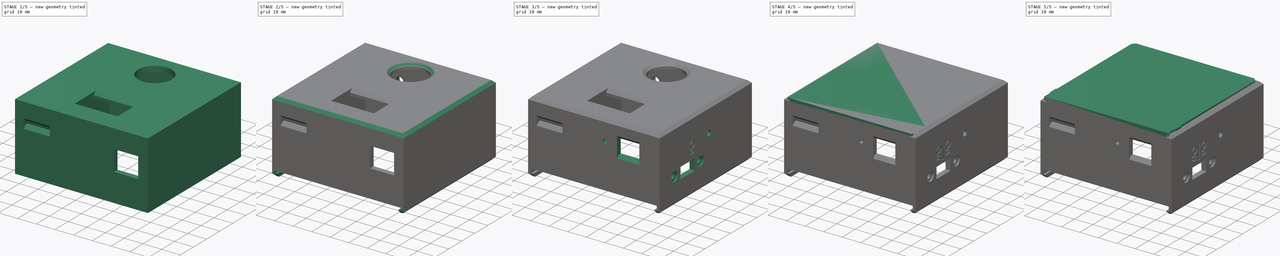
[diagram: build sequence overview — one tinted view per stage of 5, left to right]
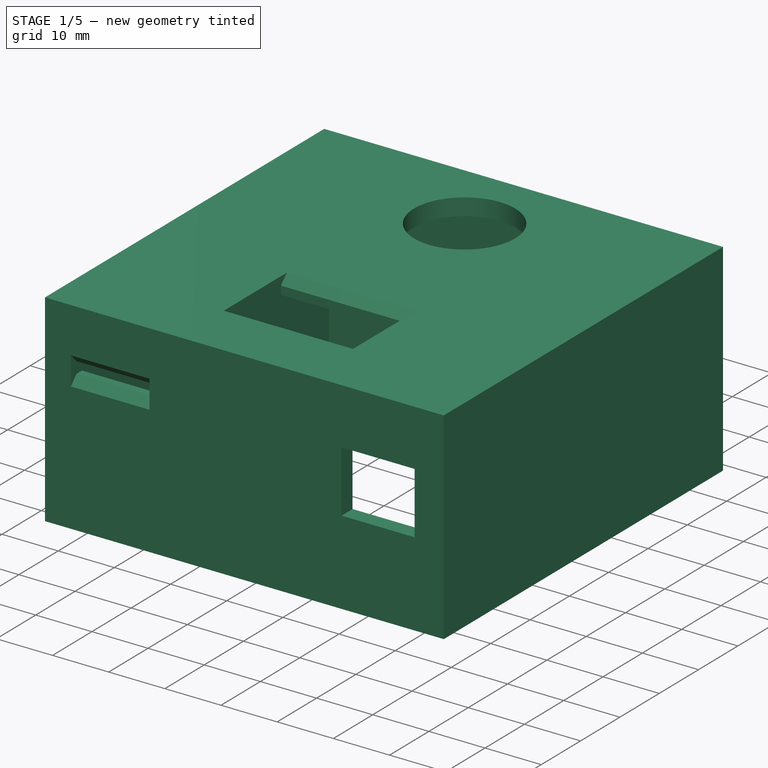
[diagram: stage 1 of 5 — iso view after this stage's code; geometry added in this stage tinted green]
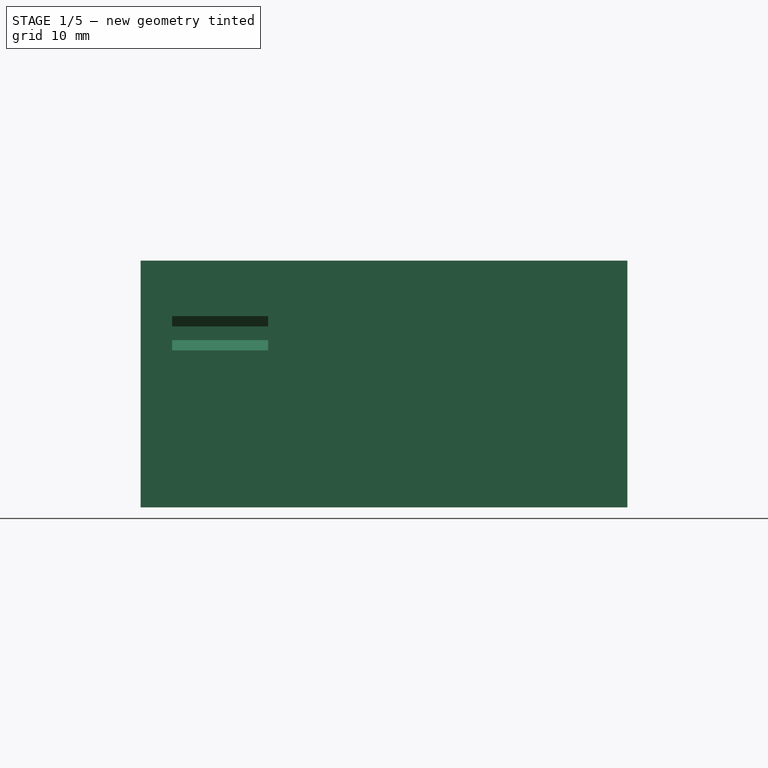
[diagram: stage 1 of 5 — front view after this stage's code; geometry added in this stage tinted green]
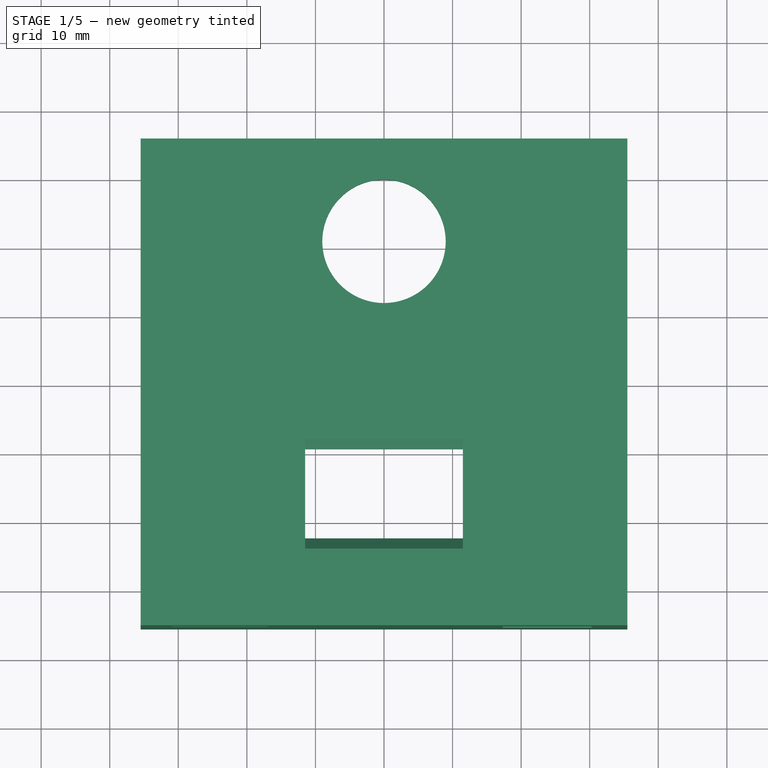
[diagram: stage 1 of 5 — top view after this stage's code; geometry added in this stage tinted green]
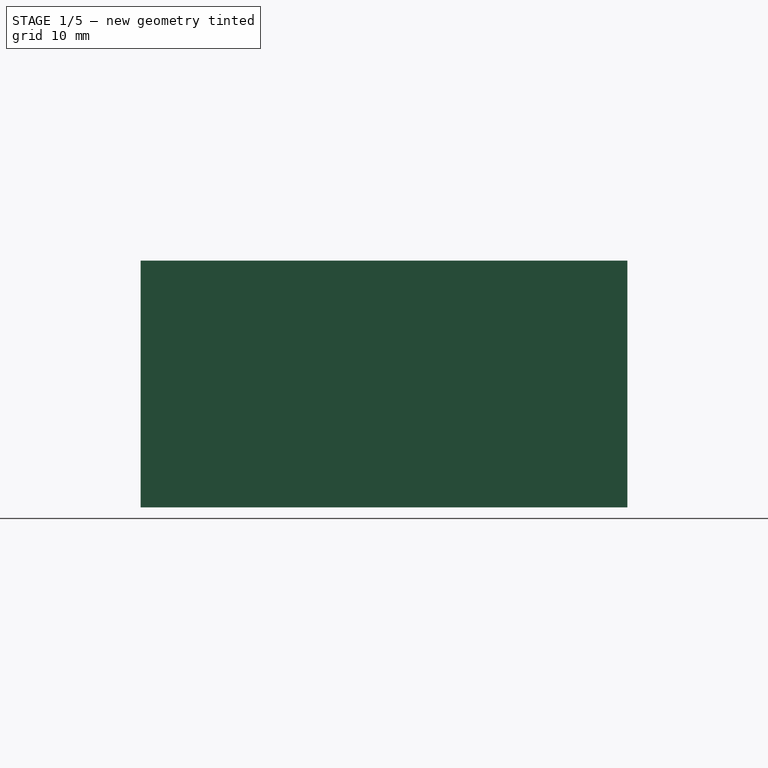
[diagram: stage 1 of 5 — right view after this stage's code; geometry added in this stage tinted green]
FCSTD DOCUMENT  (FreeCAD 0.18R4 (GitTag))
Label: BasicCaseV2
License: All rights reserved
LicenseURL: http://en.wikipedia.org/wiki/All_rights_reserved
objects: Part::Feature×86, App::Part×85, PartDesign::Pocket×36, Sketcher::SketchObject×34, PartDesign::Pad×18, PartDesign::Chamfer×11, PartDesign::Fillet×5, PartDesign::Body×2, Part::Part2DObjectPython×2
note: 248 computed .brp shape members not serialized (recipe doc carries the construction recipe); baked Part::Feature solids carry a one-line shape summary decoded from their .brp

FEATURE [Sketcher::SketchObject] Sketch
  MapMode = 5
  Support = -> [XY_Plane]
  sketch-geometry (4):
    g0: LineSegment StartX=-35.5 StartY=35.5 StartZ=0 EndX=35.5 EndY=35.5 EndZ=0
    g1: LineSegment StartX=35.5 StartY=35.5 StartZ=0 EndX=35.5 EndY=-35.5 EndZ=0
    g2: LineSegment StartX=35.5 StartY=-35.5 StartZ=0 EndX=-35.5 EndY=-35.5 EndZ=0
    g3: LineSegment StartX=-35.5 StartY=-35.5 StartZ=0 EndX=-35.5 EndY=35.5 EndZ=0
  constraints (12):
    c: Coincident(g0,g1)
    c: Coincident(g1,g2)
    c: Coincident(g2,g3)
    c: Coincident(g3,g0)
    c: Horizontal(g0)
    c: Horizontal(g2)
    c: Vertical(g1)
    c: Vertical(g3)
    c: Distance(g0) = 71
    c: Distance(g1) = 71
    c: Distance(g0,g-1) = 35.5
    c: Distance(g0,g-2) = 35.5
FEATURE [PartDesign::Pad] Pad
  Length = 3
  Length2 = 100
  Profile = -> Sketch
  Type = 0
FEATURE [Sketcher::SketchObject] Sketch001
  ExternalGeometry = -> [Pad]
  MapMode = 5
  Placement = pos=(0,0,3) rot=(0,0,1;0rad)
  Support = -> [Pad]
  sketch-geometry (1):
    g0: Circle CenterX=-1.8e-15 CenterY=20.5 CenterZ=0 NormalX=0 NormalY=0 NormalZ=1 AngleXU=0 Radius=9
  constraints (3):
    c: Diameter(g0) = 18
    c: Distance(g0,g-3) = 35.5
    c: Distance(g0,g-1) = 20.5
FEATURE [PartDesign::Pocket] Pocket
  BaseFeature = -> Pad
  Length = 5
  Length2 = 100
  Profile = -> Sketch001
  Type = 0
FEATURE [Sketcher::SketchObject] Sketch002
  MapMode = 5
  Placement = pos=(0,0,3) rot=(0,0,1;0rad)
  Support = -> [Pocket]
  sketch-geometry (4):
    g0: LineSegment StartX=-11.5 StartY=-9.8 StartZ=0 EndX=11.5 EndY=-9.8 EndZ=0
    g1: LineSegment StartX=11.5 StartY=-9.8 StartZ=0 EndX=11.5 EndY=-22.8 EndZ=0
    g2: LineSegment StartX=11.5 StartY=-22.8 StartZ=0 EndX=-11.5 EndY=-22.8 EndZ=0
    g3: LineSegment StartX=-11.5 StartY=-22.8 StartZ=0 EndX=-11.5 EndY=-9.8 EndZ=0
  constraints (12):
    c: Coincident(g0,g1)
    c: Coincident(g1,g2)
    c: Coincident(g2,g3)
    c: Coincident(g3,g0)
    c: Horizontal(g0)
    c: Horizontal(g2)
    c: Vertical(g1)
    c: Vertical(g3)
    c: Distance(g0) = 23
    c: Distance(g1) = 13
    c: Distance(g0,g-2) = 11.5
    c: Distance(g0,g-1) = 9.8
FEATURE [PartDesign::Pocket] Pocket001
  BaseFeature = -> Pocket
  Length = 5
  Length2 = 100
  Profile = -> Sketch002
  Type = 0
FEATURE [Sketcher::SketchObject] Sketch003
  ExternalGeometry = -> [Pocket001]
  MapMode = 5
  Placement = pos=(0,0,0) rot=(1,0,0;3.14159rad)
  Support = -> [Pocket001]
  sketch-geometry (8):
    g0: LineSegment StartX=-32.5 StartY=32.5 StartZ=0 EndX=32.5 EndY=32.5 EndZ=0
    g1: LineSegment StartX=32.5 StartY=32.5 StartZ=0 EndX=32.5 EndY=-32.5 EndZ=0
    g2: LineSegment StartX=32.5 StartY=-32.5 StartZ=0 EndX=-32.5 EndY=-32.5 EndZ=0
    g3: LineSegment StartX=-32.5 StartY=-32.5 StartZ=0 EndX=-32.5 EndY=32.5 EndZ=0
    g4: LineSegment StartX=-35.5 StartY=35.5 StartZ=0 EndX=35.5 EndY=35.5 EndZ=0
    g5: LineSegment StartX=35.5 StartY=35.5 StartZ=0 EndX=35.5 EndY=-35.5 EndZ=0
    g6: LineSegment StartX=35.5 StartY=-35.5 StartZ=0 EndX=-35.5 EndY=-35.5 EndZ=0
    g7: LineSegment StartX=-35.5 StartY=-35.5 StartZ=0 EndX=-35.5 EndY=35.5 EndZ=0
  constraints (23):
    c: Coincident(g0,g1)
    c: Coincident(g1,g2)
    c: Coincident(g2,g3)
    c: Coincident(g3,g0)
    c: Horizontal(g0)
    c: Horizontal(g2)
    c: Vertical(g1)
    c: Vertical(g3)
    c: Coincident(g4,g5)
    c: Coincident(g5,g6)
    c: Coincident(g6,g7)
    c: Coincident(g7,g4)
    c: Horizontal(g4)
    c: Horizontal(g6)
    c: Vertical(g5)
    c: Vertical(g7)
    c: Coincident(g4,g-4)
    c: Distance(g4) = 71
    c: Distance(g5) = 71
    c: Distance(g2) = 65
    c: Distance(g1) = 65
    c: Distance(g0,g4) = 3
    c: Distance(g0,g5) = 3
FEATURE [PartDesign::Pad] Pad001
  BaseFeature = -> Pocket001
  Length = 33
  Length2 = 100
  Profile = -> Sketch003
  Type = 0
FEATURE [PartDesign::Pocket] Pocket002
  BaseFeature = -> Pad001
  Length = 0.2
  Length2 = 100
  Profile = -> Pad001 [Face17]
  Type = 0
FEATURE [PartDesign::Pocket] Pocket003
  BaseFeature = -> Pocket002
  Length = 0.2
  Length2 = 100
  Profile = -> Pocket002 [Face17]
  Refine = true
  Type = 0
FEATURE [PartDesign::Pocket] Pocket004
  BaseFeature = -> Pocket003
  Length = 0.2
  Length2 = 100
  Profile = -> Pocket003 [Face14]
  Type = 0
FEATURE [PartDesign::Pocket] Pocket005
  BaseFeature = -> Pocket004
  Length = 0.2
  Length2 = 100
  Profile = -> Pocket004 [Face14]
  Refine = true
  Type = 0
FEATURE [Sketcher::SketchObject] Sketch004
  ExternalGeometry = -> [Pocket005]
  MapMode = 5
  Placement = pos=(0,0,0) rot=(1,0,0;3.14159rad)
  Support = -> [Pocket005]
  sketch-geometry (16):
    g0: LineSegment StartX=-32.7 StartY=15.2 StartZ=0 EndX=-25.2 EndY=15.2 EndZ=0
    g1: LineSegment StartX=-25.2 StartY=15.2 StartZ=0 EndX=-25.2 EndY=7.7 EndZ=0
    g2: LineSegment StartX=-25.2 StartY=7.7 StartZ=0 EndX=-32.7 EndY=7.7 EndZ=0
    g3: LineSegment StartX=-32.7 StartY=7.7 StartZ=0 EndX=-32.7 EndY=15.2 EndZ=0
    g4: LineSegment StartX=-32.7 StartY=-25.2 StartZ=0 EndX=-25.2 EndY=-25.2 EndZ=0
    g5: LineSegment StartX=-25.2 StartY=-25.2 StartZ=0 EndX=-25.2 EndY=-32.7 EndZ=0
    g6: LineSegment StartX=-25.2 StartY=-32.7 StartZ=0 EndX=-32.7 EndY=-32.7 EndZ=0
    g7: LineSegment StartX=-32.7 StartY=-32.7 StartZ=0 EndX=-32.7 EndY=-25.2 EndZ=0
    g8: LineSegment StartX=25.2 StartY=-25.2 StartZ=0 EndX=32.7 EndY=-25.2 EndZ=0
    g9: LineSegment StartX=32.7 StartY=-25.2 StartZ=0 EndX=32.7 EndY=-32.7 EndZ=0
    g10: LineSegment StartX=32.7 StartY=-32.7 StartZ=0 EndX=25.2 EndY=-32.7 EndZ=0
    g11: LineSegment StartX=25.2 StartY=-32.7 StartZ=0 EndX=25.2 EndY=-25.2 EndZ=0
    g12: LineSegment StartX=25.2 StartY=15.2 StartZ=0 EndX=32.7 EndY=15.2 EndZ=0
    g13: LineSegment StartX=32.7 StartY=15.2 StartZ=0 EndX=32.7 EndY=7.7 EndZ=0
    g14: LineSegment StartX=32.7 StartY=7.7 StartZ=0 EndX=25.2 EndY=7.7 EndZ=0
    g15: LineSegment StartX=25.2 StartY=7.7 StartZ=0 EndX=25.2 EndY=15.2 EndZ=0
  constraints (46):
    c: Coincident(g0,g1)
    c: Coincident(g1,g2)
    c: Coincident(g2,g3)
    c: Coincident(g3,g0)
    c: Horizontal(g0)
    c: Horizontal(g2)
    c: Vertical(g1)
    c: Vertical(g3)
    c: Coincident(g4,g5)
    c: Coincident(g5,g6)
    c: Coincident(g6,g7)
    c: Coincident(g7,g4)
    c: Horizontal(g4)
    c: Horizontal(g6)
    c: Vertical(g5)
    c: Vertical(g7)
    c: Coincident(g8,g9)
    c: Coincident(g9,g10)
    c: Coincident(g10,g11)
    c: Coincident(g11,g8)
    c: Horizontal(g8)
    c: Horizontal(g10)
    c: Vertical(g9)
    c: Vertical(g11)
    c: Coincident(g12,g13)
    c: Coincident(g13,g14)
    c: Coincident(g14,g15)
    c: Coincident(g15,g12)
    c: Horizontal(g12)
    c: Horizontal(g14)
    c: Vertical(g13)
    c: Vertical(g15)
    c: Distance(g4) = 7.5
    c: Distance(g5) = 7.5
    c: Coincident(g6,g-4)
    c: Coincident(g9,g-5)
    c: Distance(g8) = 7.5
    c: Distance(g11) = 7.5
    c: Distance(g1) = 7.5
    c: Distance(g2) = 7.5
    c: Distance(g15) = 7.5
    c: Distance(g14) = 7.5
    c: Distance(g13,g-8) = 2.8
    c: Distance(g2,g-7) = 2.8
    c: Distance(g14,g-4) = 40.4
    c: Distance(g1,g-4) = 40.4
FEATURE [PartDesign::Pad] Pad002
  BaseFeature = -> Pocket005
  Length = 5
  Length2 = 100
  Profile = -> Sketch004
  Type = 0
FEATURE [PartDesign::Fillet] Fillet
  Base = -> Pad002 [Edge77,Edge74]
  BaseFeature = -> Pad002
  Radius = 4.5
FEATURE [Sketcher::SketchObject] Sketch005
  ExternalGeometry = -> [Fillet]
  MapMode = 5
  Placement = pos=(0,0,-5) rot=(1,0,0;3.14159rad)
  Support = -> [Fillet]
  sketch-geometry (4):
    g0: Circle CenterX=-28.5 CenterY=11.5 CenterZ=0 NormalX=0 NormalY=0 NormalZ=1 AngleXU=0 Radius=1.3
    g1: Circle CenterX=28.5 CenterY=11.5 CenterZ=0 NormalX=0 NormalY=0 NormalZ=1 AngleXU=0 Radius=1.3
    g2: Circle CenterX=28.5 CenterY=-28.5 CenterZ=0 NormalX=0 NormalY=0 NormalZ=1 AngleXU=0 Radius=1.3
    g3: Circle CenterX=-28.5 CenterY=-28.5 CenterZ=0 NormalX=0 NormalY=0 NormalZ=1 AngleXU=0 Radius=1.3
  constraints (12):
    c: Diameter(g1) = 2.6
    c: Diameter(g0) = 2.6
    c: Diameter(g3) = 2.6
    c: Diameter(g2) = 2.6
    c: Distance(g3,g-6) = 4.2
    c: Distance(g3,g-5) = 4.2
    c: Distance(g2,g-7) = 4.2
    c: Distance(g2,g-6) = 4.2
    c: Distance(g1,g-7) = 4.2
    c: Distance(g1,g-8) = 3.8
    c: Distance(g0,g-5) = 4.2
    c: Distance(g0,g-9) = 3.8
FEATURE [PartDesign::Pocket] Pocket006
  BaseFeature = -> Fillet
  Length = 6
  Length2 = 100
  Profile = -> Sketch005
  Type = 0
FEATURE [Sketcher::SketchObject] Sketch006
  ExternalGeometry = -> [Pocket006]
  MapMode = 5
  Placement = pos=(0,-35.5,0) rot=(1,0,0;1.5708rad)
  Support = -> [Pocket006]
  sketch-geometry (8):
    g0: LineSegment StartX=-30.9 StartY=-6.6 StartZ=0 EndX=-16.9 EndY=-6.6 EndZ=0
    g1: LineSegment StartX=-16.9 StartY=-6.6 StartZ=0 EndX=-16.9 EndY=-8.6 EndZ=0
    g2: LineSegment StartX=-16.9 StartY=-8.6 StartZ=0 EndX=-30.9 EndY=-8.6 EndZ=0
    g3: LineSegment StartX=-30.9 StartY=-8.6 StartZ=0 EndX=-30.9 EndY=-6.6 EndZ=0
    g4: LineSegment StartX=17.3 StartY=-7 StartZ=0 EndX=30.3 EndY=-7 EndZ=0
    g5: LineSegment StartX=30.3 StartY=-7 StartZ=0 EndX=30.3 EndY=-18 EndZ=0
    g6: LineSegment StartX=30.3 StartY=-18 StartZ=0 EndX=17.3 EndY=-18 EndZ=0
    g7: LineSegment StartX=17.3 StartY=-18 StartZ=0 EndX=17.3 EndY=-7 EndZ=0
  constraints (24):
    c: Coincident(g0,g1)
    c: Coincident(g1,g2)
    c: Coincident(g2,g3)
    c: Coincident(g3,g0)
    c: Horizontal(g0)
    c: Horizontal(g2)
    c: Vertical(g1)
    c: Vertical(g3)
    c: Distance(g1) = 2
    c: Distance(g0) = 14
    c: Distance(g0,g-4) = 4.6
    c: Distance(g0,g-3) = 9.6
    c: Coincident(g4,g5)
    c: Coincident(g5,g6)
    c: Coincident(g6,g7)
    c: Coincident(g7,g4)
    c: Horizontal(g4)
    c: Horizontal(g6)
    c: Vertical(g5)
    c: Vertical(g7)
    c: Distance(g4) = 13
    c: Distance(g5) = 11
    c: Distance(g4,g-6) = 5.2
    c: Distance(g4,g-3) = 10
FEATURE [PartDesign::Pocket] Pocket007
  BaseFeature = -> Pocket006
  Length = 5
  Length2 = 100
  Profile = -> Sketch006
  Type = 0
FEATURE [PartDesign::Chamfer] Chamfer
  Base = -> Pocket007 [Edge105,Edge101]
  BaseFeature = -> Pocket007
  Size = 1.5
FEATURE [PartDesign::Chamfer] Chamfer001
  Base = -> Chamfer [Edge90,Edge88]
  BaseFeature = -> Chamfer
  Size = 1.5
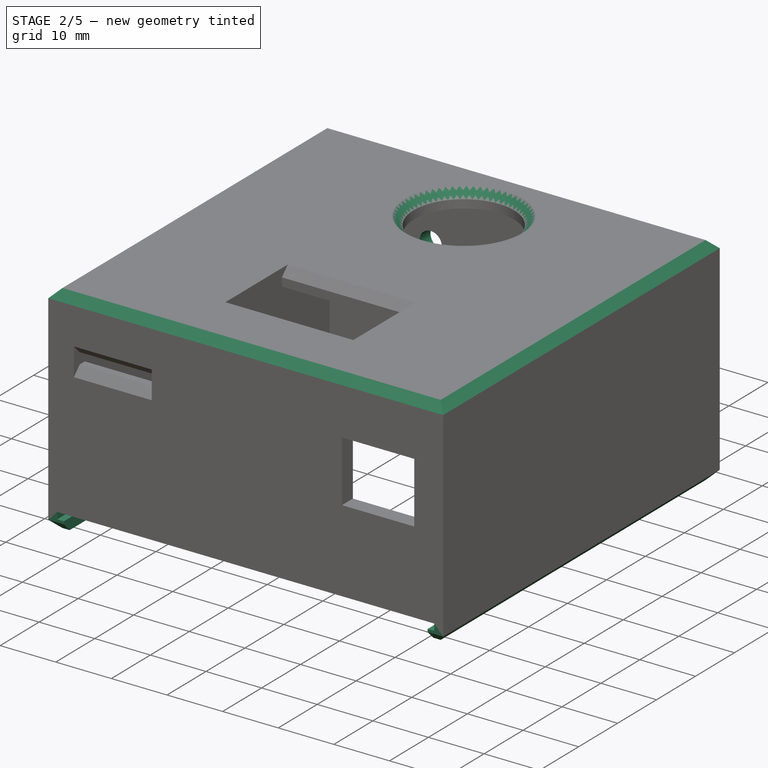
[diagram: stage 2 of 5 — iso view after this stage's code; geometry added in this stage tinted green]
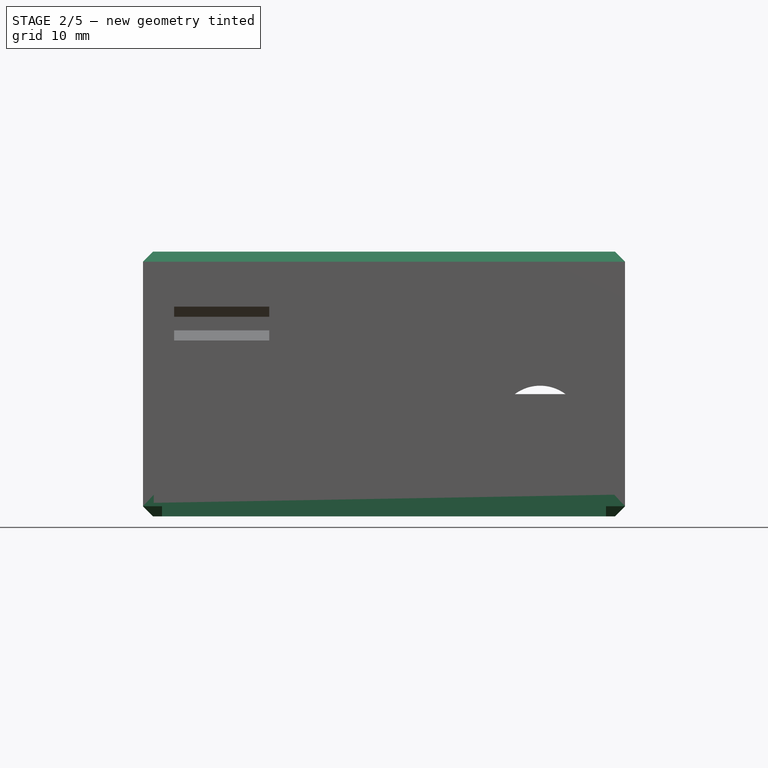
[diagram: stage 2 of 5 — front view after this stage's code; geometry added in this stage tinted green]
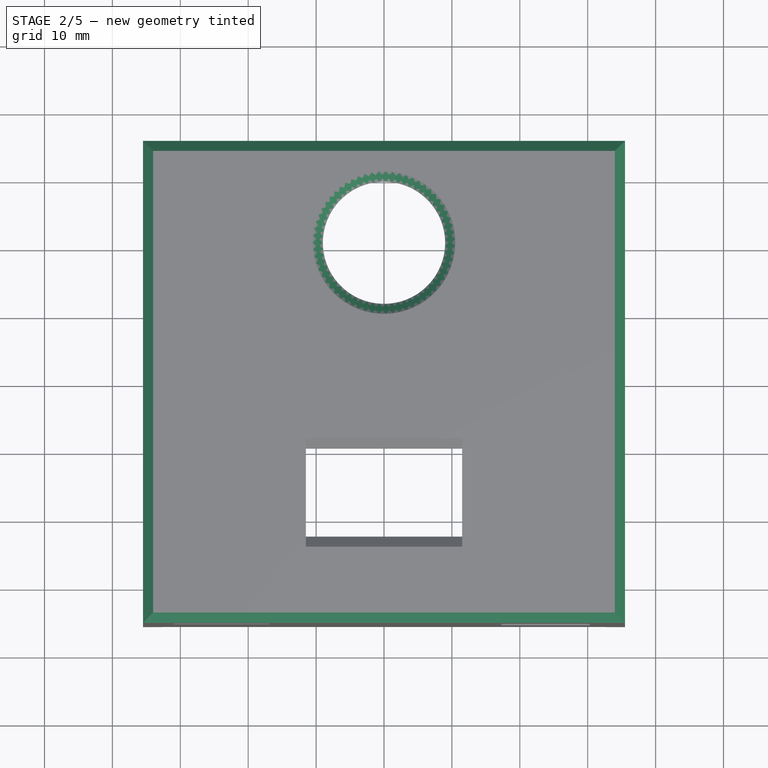
[diagram: stage 2 of 5 — top view after this stage's code; geometry added in this stage tinted green]
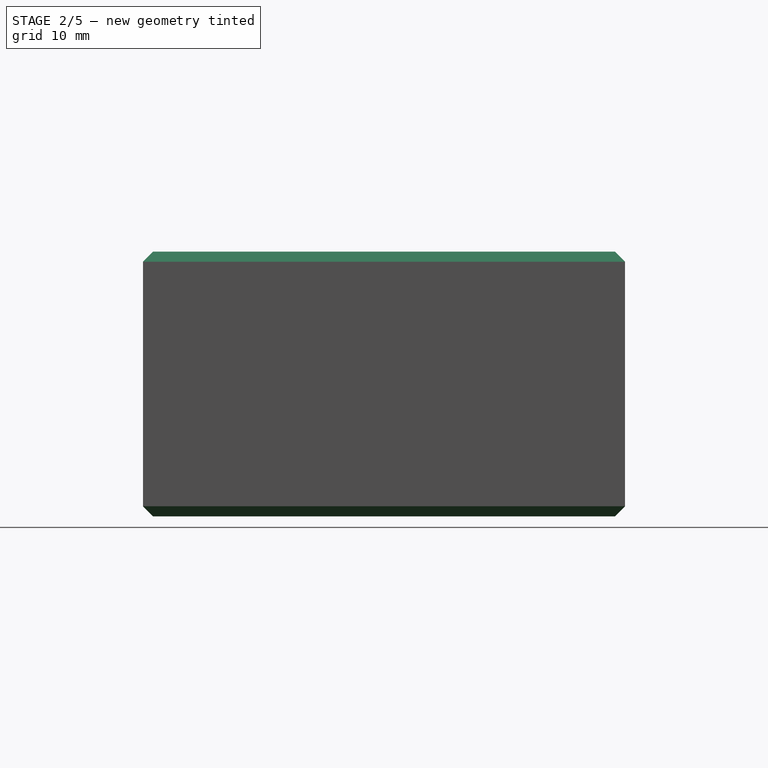
[diagram: stage 2 of 5 — right view after this stage's code; geometry added in this stage tinted green]
FEATURE [PartDesign::Chamfer] Chamfer002
  Base = -> Chamfer001 [Edge13]
  BaseFeature = -> Chamfer001
  Size = 1.5
FEATURE [PartDesign::Pad] Pad004
  BaseFeature = -> Chamfer002
  Length = 3
  Length2 = 100
  Profile = -> Chamfer002 [Face15]
  Refine = true
  Type = 0
FEATURE [Sketcher::SketchObject] Sketch008
  ExternalGeometry = -> [Pad004]
  MapMode = 5
  Placement = pos=(0,-35.5,0) rot=(1,0,0;1.5708rad)
  Support = -> [Pad004]
  sketch-geometry (4):
    g0: LineSegment StartX=-32.7 StartY=-32.8 StartZ=0 EndX=32.7 EndY=-32.8 EndZ=0
    g1: LineSegment StartX=32.7 StartY=-32.8 StartZ=0 EndX=32.7 EndY=-36 EndZ=0
    g2: LineSegment StartX=32.7 StartY=-36 StartZ=0 EndX=-32.7 EndY=-36 EndZ=0
    g3: LineSegment StartX=-32.7 StartY=-36 StartZ=0 EndX=-32.7 EndY=-32.8 EndZ=0
  constraints (12):
    c: Coincident(g0,g1)
    c: Coincident(g1,g2)
    c: Coincident(g2,g3)
    c: Coincident(g3,g0)
    c: Horizontal(g0)
    c: Horizontal(g2)
    c: Vertical(g1)
    c: Vertical(g3)
    c: Distance(g1,g-4) = 2.8
    c: Distance(g2,g-5) = 2.8
    c: Distance(g0,g-3) = 3.2
    c: Distance(g3) = 3.2
FEATURE [PartDesign::Pocket] Pocket008
  BaseFeature = -> Pad004
  Length = 5
  Length2 = 100
  Profile = -> Sketch008
  Type = 0
FEATURE [Sketcher::SketchObject] Sketch009
  ExternalGeometry = -> [Pocket008]
  MapMode = 5
  Placement = pos=(0,-35.5,0) rot=(1,0,0;1.5708rad)
  Support = -> [Pocket008]
  sketch-geometry (8):
    g0: LineSegment StartX=-33.9 StartY=-32.8 StartZ=0 EndX=-32.7 EndY=-32.8 EndZ=0
    g1: LineSegment StartX=-32.7 StartY=-32.8 StartZ=0 EndX=-32.7 EndY=-34 EndZ=0
    g2: LineSegment StartX=-32.7 StartY=-34 StartZ=0 EndX=-33.9 EndY=-34 EndZ=0
    g3: LineSegment StartX=-33.9 StartY=-34 StartZ=0 EndX=-33.9 EndY=-32.8 EndZ=0
    g4: LineSegment StartX=32.7 StartY=-32.8 StartZ=0 EndX=33.9 EndY=-32.8 EndZ=0
    g5: LineSegment StartX=33.9 StartY=-32.8 StartZ=0 EndX=33.9 EndY=-34 EndZ=0
    g6: LineSegment StartX=33.9 StartY=-34 StartZ=0 EndX=32.7 EndY=-34 EndZ=0
    g7: LineSegment StartX=32.7 StartY=-34 StartZ=0 EndX=32.7 EndY=-32.8 EndZ=0
  constraints (22):
    c: Coincident(g0,g1)
    c: Coincident(g1,g2)
    c: Coincident(g2,g3)
    c: Coincident(g3,g0)
    c: Horizontal(g0)
    c: Horizontal(g2)
    c: Vertical(g1)
    c: Vertical(g3)
    c: Coincident(g4,g5)
    c: Coincident(g5,g6)
    c: Coincident(g6,g7)
    c: Coincident(g7,g4)
    c: Horizontal(g4)
    c: Horizontal(g6)
    c: Vertical(g5)
    c: Vertical(g7)
    c: Coincident(g0,g-3)
    c: Coincident(g-3,g4)
    c: Distance(g4) = 1.2
    c: Distance(g5) = 1.2
    c: Distance(g0) = 1.2
    c: Distance(g3) = 1.2
FEATURE [PartDesign::Pocket] Pocket009
  BaseFeature = -> Pocket008
  Length = 68.2
  Length2 = 100
  Profile = -> Sketch009
  Type = 0
FEATURE [Sketcher::SketchObject] Sketch010
  ExternalGeometry = -> [Pocket009]
  MapMode = 5
  Placement = pos=(-1.3e-15,32.7,3.6e-15) rot=(1,0,0;1.5708rad)
  Support = -> [Pocket009]
  sketch-geometry (4):
    g0: LineSegment StartX=-33.9 StartY=-32.8 StartZ=0 EndX=33.9 EndY=-32.8 EndZ=0
    g1: LineSegment StartX=33.9 StartY=-32.8 StartZ=0 EndX=33.9 EndY=-34 EndZ=0
    g2: LineSegment StartX=33.9 StartY=-34 StartZ=0 EndX=-33.9 EndY=-34 EndZ=0
    g3: LineSegment StartX=-33.9 StartY=-34 StartZ=0 EndX=-33.9 EndY=-32.8 EndZ=0
  constraints (11):
    c: Coincident(g0,g1)
    c: Coincident(g1,g2)
    c: Coincident(g2,g3)
    c: Coincident(g3,g0)
    c: Horizontal(g0)
    c: Horizontal(g2)
    c: Vertical(g1)
    c: Vertical(g3)
    c: Coincident(g0,g-3)
    c: Distance(g3) = 1.2
    c: Distance(g2) = 67.8
FEATURE [PartDesign::Pocket] Pocket010
  BaseFeature = -> Pocket009
  Length = 1.2
  Length2 = 100
  Profile = -> Sketch010
  Type = 0
FEATURE [PartDesign::Chamfer] Chamfer003
  Base = -> Pocket010 [Edge7,Edge9,Edge8,Edge6]
  BaseFeature = -> Pocket010
  Size = 1.5
FEATURE [PartDesign::Chamfer] Chamfer004
  Base = -> Chamfer003 [Edge33,Edge56,Edge57]
  BaseFeature = -> Chamfer003
  Size = 1.5
FEATURE [PartDesign::Chamfer] Chamfer005
  Base = -> Chamfer004 [Edge20,Edge15]
  BaseFeature = -> Chamfer004
  Size = 1.5
FEATURE [Part::Feature] Part__Feature087  label="Button"
  Placement = pos=(23.05,15.49,-16.2) rot=(-1,0,0;1.5708rad)
  shape: bbox 14 x 24 x 14 mm, 9 faces (baked)
FEATURE [Sketcher::SketchObject] Sketch015
  ExternalGeometry = -> [Chamfer005]
  MapMode = 5
  Placement = pos=(0,35.5,0) rot=(0,0.707107,0.707107;3.14159rad)
  Support = -> [Chamfer005]
  sketch-geometry (1):
    g0: Circle CenterX=-23 CenterY=-23 CenterZ=0 NormalX=0 NormalY=0 NormalZ=1 AngleXU=0 Radius=6.25
  constraints (3):
    c: Diameter(g0) = 12.5
    c: Distance(g0,g-3) = 12.5
    c: Distance(g0,g-1) = 23
FEATURE [PartDesign::Pocket] Pocket015
  BaseFeature = -> Chamfer005
  Length = 5
  Length2 = 100
  Profile = -> Sketch015
  Type = 0
FEATURE [Sketcher::SketchObject] Sketch018
  ExternalGeometry = -> [Pocket015]
  MapMode = 5
  Placement = pos=(33.9,0,0) rot=(0.57735,-0.57735,-0.57735;2.0944rad)
  Support = -> [Pocket015]
  sketch-geometry (4):
    g0: LineSegment StartX=25 StartY=-32.8 StartZ=0 EndX=31 EndY=-32.8 EndZ=0
    g1: LineSegment StartX=31 StartY=-32.8 StartZ=0 EndX=31 EndY=-34 EndZ=0
    g2: LineSegment StartX=31 StartY=-34 StartZ=0 EndX=25 EndY=-34 EndZ=0
    g3: LineSegment StartX=25 StartY=-34 StartZ=0 EndX=25 EndY=-32.8 EndZ=0
  constraints (12):
    c: Coincident(g0,g1)
    c: Coincident(g1,g2)
    c: Coincident(g2,g3)
    c: Coincident(g3,g0)
    c: Horizontal(g0)
    c: Horizontal(g2)
    c: Vertical(g1)
    c: Vertical(g3)
    c: Distance(g1) = 1.2
    c: Distance(g1,g-3) = 1.2
    c: Distance(g0) = 6
    c: Distance(g0,g-4) = 4.5
FEATURE [PartDesign::Pocket] Pocket016
  BaseFeature = -> Pocket015
  Length = 0.6
  Length2 = 100
  Profile = -> Sketch018
  Type = 0
FEATURE [PartDesign::Fillet] Fillet003
  Base = -> Pocket016 [Edge177,Edge157]
  BaseFeature = -> Pocket016
  Radius = 0.49
FEATURE [Sketcher::SketchObject] Sketch019
  ExternalGeometry = -> [Fillet003]
  MapMode = 5
  Placement = pos=(-33.9,0,0) rot=(0.57735,0.57735,0.57735;2.0944rad)
  Support = -> [Fillet003]
  sketch-geometry (4):
    g0: LineSegment StartX=-31 StartY=-32.8 StartZ=0 EndX=-25 EndY=-32.8 EndZ=0
    g1: LineSegment StartX=-25 StartY=-32.8 StartZ=0 EndX=-25 EndY=-34 EndZ=0
    g2: LineSegment StartX=-25 StartY=-34 StartZ=0 EndX=-31 EndY=-34 EndZ=0
    g3: LineSegment StartX=-31 StartY=-34 StartZ=0 EndX=-31 EndY=-32.8 EndZ=0
  constraints (12):
    c: Coincident(g0,g1)
    c: Coincident(g1,g2)
    c: Coincident(g2,g3)
    c: Coincident(g3,g0)
    c: Horizontal(g0)
    c: Horizontal(g2)
    c: Vertical(g1)
    c: Vertical(g3)
    c: Distance(g3) = 1.2
    c: Distance(g2,g-4) = 1.2
    c: Distance(g0,g-3) = 4.5
    c: Distance(g0) = 6
FEATURE [PartDesign::Pocket] Pocket017
  BaseFeature = -> Fillet003
  Length = 0.6
  Length2 = 100
  Profile = -> Sketch019
  Type = 0
FEATURE [PartDesign::Fillet] Fillet004
  Base = -> Pocket017 [Edge210,Edge153]
  BaseFeature = -> Pocket017
  Radius = 0.49
FEATURE [Sketcher::SketchObject] Sketch020
  MapMode = 5
  Placement = pos=(0,35.5,0) rot=(0,0.707107,0.707107;3.14159rad)
  Support = -> [Fillet004]
  sketch-geometry (1):
    g0: Circle CenterX=14.5 CenterY=-10 CenterZ=0 NormalX=0 NormalY=0 NormalZ=1 AngleXU=0 Radius=2
  constraints (3):
    c: Diameter(g0) = 4
    c: Distance(g0,g-1) = 10
    c: Distance(g0,g-2) = 14.5
FEATURE [PartDesign::Pocket] Pocket018
  BaseFeature = -> Fillet004
  Length = 5
  Length2 = 100
  Profile = -> Sketch020
  Type = 0
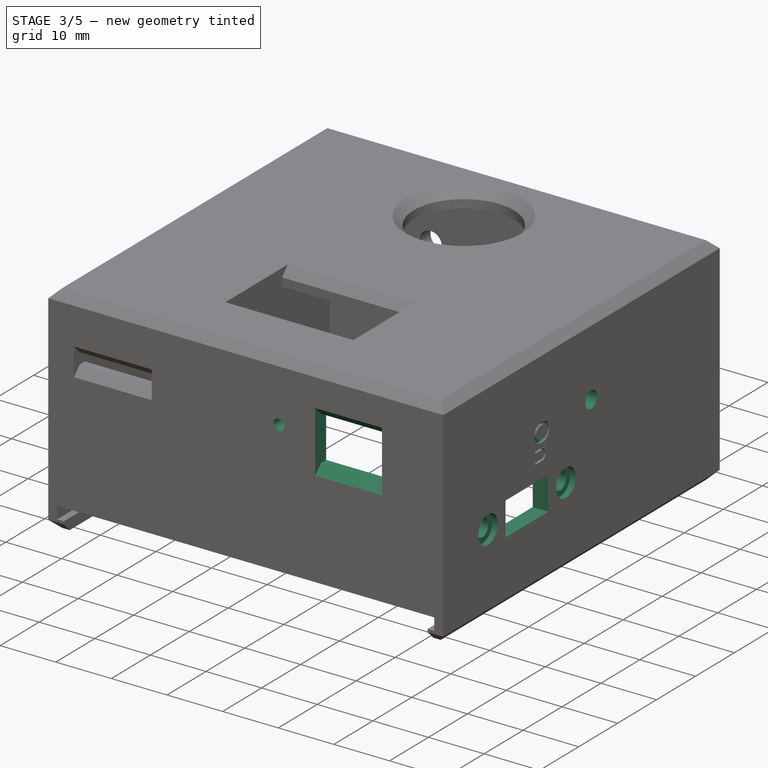
[diagram: stage 3 of 5 — iso view after this stage's code; geometry added in this stage tinted green]
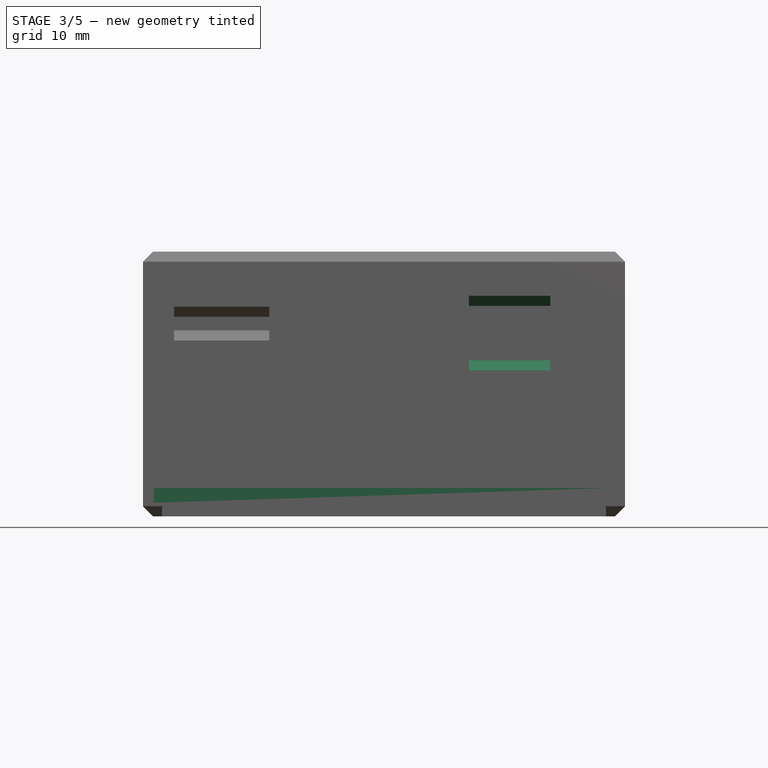
[diagram: stage 3 of 5 — front view after this stage's code; geometry added in this stage tinted green]
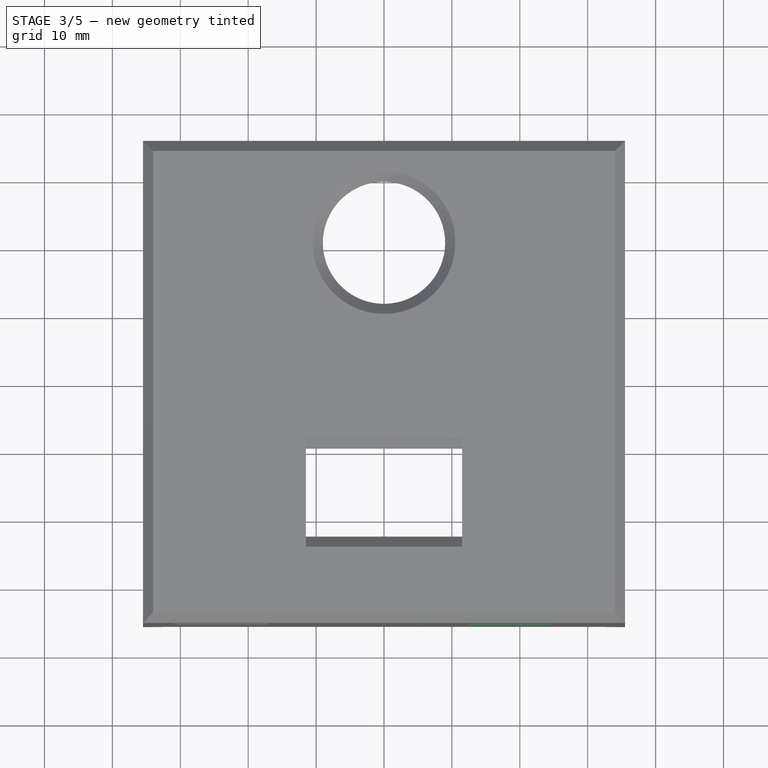
[diagram: stage 3 of 5 — top view after this stage's code; geometry added in this stage tinted green]
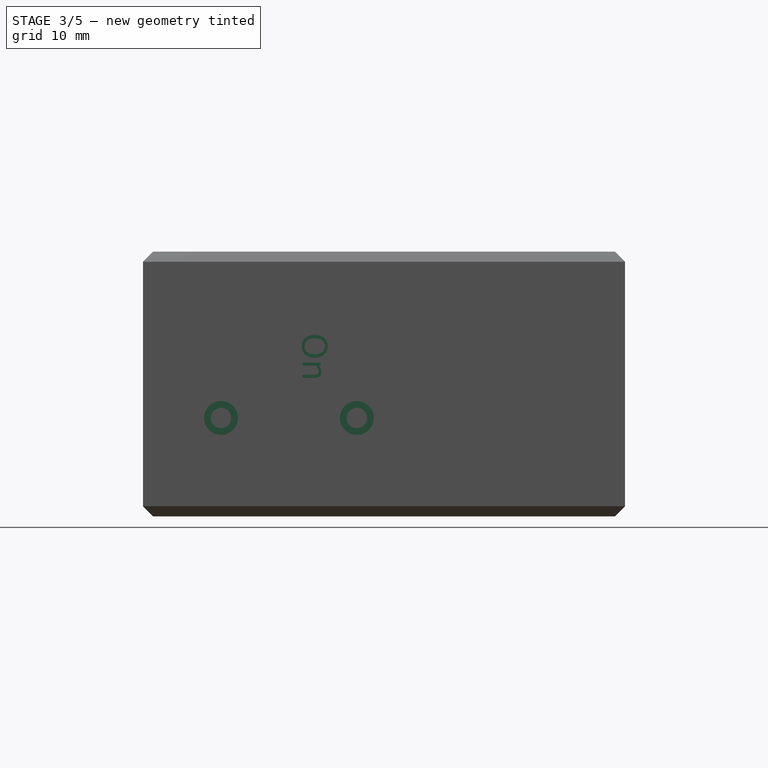
[diagram: stage 3 of 5 — right view after this stage's code; geometry added in this stage tinted green]
FEATURE [Sketcher::SketchObject] Sketch021
  MapMode = 5
  Placement = pos=(0,-35.5,0) rot=(1,0,0;1.5708rad)
  Support = -> [Pocket018]
  sketch-geometry (1):
    g0: Circle CenterX=6 CenterY=-8 CenterZ=0 NormalX=0 NormalY=0 NormalZ=1 AngleXU=0 Radius=1
  constraints (3):
    c: Diameter(g0) = 2
    c: Distance(g0,g-1) = 8
    c: Distance(g0,g-2) = 6
FEATURE [PartDesign::Pocket] Pocket019
  BaseFeature = -> Pocket018
  Length = 5
  Length2 = 100
  Profile = -> Sketch021
  Type = 0
FEATURE [Sketcher::SketchObject] Sketch022
  MapMode = 5
  Placement = pos=(35.5,0,4.6e-15) rot=(0.57735,0.57735,0.57735;2.0944rad)
  Support = -> [Pocket019]
  sketch-geometry (4):
    g0: LineSegment StartX=0.5 StartY=-13.5 StartZ=0 EndX=10.5 EndY=-13.5 EndZ=0
    g1: LineSegment StartX=10.5 StartY=-13.5 StartZ=0 EndX=10.5 EndY=-17.5 EndZ=0
    g2: LineSegment StartX=10.5 StartY=-17.5 StartZ=0 EndX=0.5 EndY=-17.5 EndZ=0
    g3: LineSegment StartX=0.5 StartY=-17.5 StartZ=0 EndX=0.5 EndY=-13.5 EndZ=0
  constraints (12):
    c: Coincident(g0,g1)
    c: Coincident(g1,g2)
    c: Coincident(g2,g3)
    c: Coincident(g3,g0)
    c: Horizontal(g0)
    c: Horizontal(g2)
    c: Vertical(g1)
    c: Vertical(g3)
    c: Distance(g1) = 4
    c: Distance(g0) = 10
    c: Distance(g0,g-1) = 13.5
    c: Distance(g0,g-2) = 0.5
FEATURE [PartDesign::Pocket] Pocket020
  BaseFeature = -> Pocket019
  Length = 5
  Length2 = 100
  Profile = -> Sketch022
  Refine = true
  Type = 0
FEATURE [PartDesign::Pocket] Pocket021
  BaseFeature = -> Pocket020
  Length = 1
  Length2 = 100
  Profile = -> Pocket020 [Face85]
  Type = 0
FEATURE [PartDesign::Body] Body001  label="Back"
  Group = -> [Sketch007,Pad003,Pocket011,Pocket012,Pocket013,Sketch011,Pad005,Sketch012,Pad006,Sketch013,Pad007,Chamfer006,Sketch014,Pocket014,Chamfer007,Sketch016,Pad008,Fillet001,Sketch017,Pad009,Fillet002,Chamfer008,Chamfer009,Pad010,Pad011,Pad012,Pocket022,Pocket023,Pocket024,Pocket025,Pocket026,Pocket027]
  Origin = -> Origin088
  Placement = pos=(0,0,-29.22) rot=(0,0,1;0rad)
  Tip = -> Pocket027
FEATURE [Sketcher::SketchObject] Sketch023
  MapMode = 5
  Placement = pos=(-35.5,0,0) rot=(0.57735,-0.57735,-0.57735;2.0944rad)
  Support = -> [Pocket021]
  sketch-geometry (6):
    g0: LineSegment StartX=-12 StartY=-14.5 StartZ=0 EndX=-1 EndY=-14.5 EndZ=0
    g1: LineSegment StartX=-1 StartY=-14.5 StartZ=0 EndX=-1 EndY=-20.5 EndZ=0
    g2: LineSegment StartX=-1 StartY=-20.5 StartZ=0 EndX=-12 EndY=-20.5 EndZ=0
    g3: LineSegment StartX=-12 StartY=-20.5 StartZ=0 EndX=-12 EndY=-14.5 EndZ=0
    g4: Circle CenterX=-16.5 CenterY=-17.5 CenterZ=0 NormalX=0 NormalY=0 NormalZ=1 AngleXU=0 Radius=1.5
    g5: Circle CenterX=3.5 CenterY=-17.5 CenterZ=0 NormalX=0 NormalY=0 NormalZ=1 AngleXU=0 Radius=1.5
  constraints (18):
    c: Coincident(g0,g1)
    c: Coincident(g1,g2)
    c: Coincident(g2,g3)
    c: Coincident(g3,g0)
    c: Horizontal(g0)
    c: Horizontal(g2)
    c: Vertical(g1)
    c: Vertical(g3)
    c: Distance(g1) = 6
    c: Distance(g0) = 11
    c: Diameter(g5) = 3
    c: Diameter(g4) = 3
    c: Distance(g4,g5) = 20
    c: Distance(g5,g0) = 3
    c: Distance(g4,g0) = 3
    c: Distance(g5,g1) = 4.5
    c: Distance(g0,g-1) = 14.5
    c: Distance(g0,g-2) = 1
FEATURE [PartDesign::Pocket] Pocket028
  BaseFeature = -> Pocket021
  Length = 5
  Length2 = 100
  Profile = -> Sketch023
  Type = 0
FEATURE [Sketcher::SketchObject] Sketch024
  ExternalGeometry = -> [Pocket028]
  MapMode = 5
  Placement = pos=(-35.5,0,0) rot=(0.57735,-0.57735,-0.57735;2.0944rad)
  Support = -> [Pocket028]
  sketch-geometry (2):
    g0: Circle CenterX=-16.5 CenterY=-17.5 CenterZ=0 NormalX=0 NormalY=0 NormalZ=1 AngleXU=0 Radius=2.25
    g1: Circle CenterX=3.5 CenterY=-17.5 CenterZ=0 NormalX=0 NormalY=0 NormalZ=1 AngleXU=0 Radius=2.25
  constraints (4):
    c: Coincident(g0,g-3)
    c: Coincident(g-4,g1)
    c: Diameter(g1) = 4.5
    c: Diameter(g0) = 4.5
FEATURE [PartDesign::Pocket] Pocket029
  BaseFeature = -> Pocket028
  Length = 1
  Length2 = 100
  Profile = -> Sketch024
  Type = 0
FEATURE [Sketcher::SketchObject] Sketch025
  ExternalGeometry = -> [Pocket029]
  MapMode = 5
  Placement = pos=(0,35.5,0) rot=(0,0.707107,0.707107;3.14159rad)
  Support = -> [Pocket029]
  sketch-geometry (1):
    g0: Circle CenterX=-23 CenterY=-23 CenterZ=0 NormalX=0 NormalY=0 NormalZ=1 AngleXU=0 Radius=7.5
  constraints (2):
    c: Coincident(g0,g-3)
    c: Diameter(g0) = 15
FEATURE [PartDesign::Pad] Pad013
  BaseFeature = -> Pocket029
  Length = 2.8
  Length2 = 100
  Profile = -> Sketch025
  Refine = true
  Reversed = true
  Type = 0
FEATURE [Part::Feature] Part__Feature  label="COMPOUND"
  shape: bbox 31.86 x 5.201 x 16 mm, 242 faces, 3 solids (baked)
FEATURE [App::Part] BU2032SM_BT_GTR  label="BU2032SM-BT-GTR"
  Group = -> [Part__Feature]
  Origin = -> Origin089
  Placement = pos=(11.5,40.6,-0.05) rot=(-0.57735,0.57735,-0.57735;2.0944rad)
FEATURE [Part::Feature] Part__Feature088  label="SOLID"
  shape: bbox 21.65 x 3.2 x 21.65 mm, 848 faces (baked)
FEATURE [App::Part] _032_Battery  label="2032_Battery"
  Group = -> [Part__Feature088]
  Origin = -> Origin090
  Placement = pos=(11.5,40.6,-1.55) rot=(-0.57735,0.57735,-0.57735;2.0944rad)
FEATURE [Part::Feature] Part__Feature089  label="COMPOUND001"
  shape: bbox 26.71 x 27.87 x 10.86 mm, 208 faces, 4 solids (baked)
FEATURE [App::Part] OLED_128x64
  Group = -> [Part__Feature089]
  Origin = -> Origin091
  Placement = pos=(66.75,18.5,4.65) rot=(0,0,1;0rad)
FEATURE [Part::Feature] Part__Feature090  label="SOLID001"
  shape: bbox 4.588 x 4.588 x 1.769 mm, 29 faces (baked)
FEATURE [App::Part] M2_Nut_v2
  Group = -> [Part__Feature090]
  Origin = -> Origin092
  Placement = pos=(21,25.5,2.65) rot=(0,0,1;3.14159rad)
FEATURE [Part::Feature] Part__Feature091  label="SOLID002"
  shape: bbox 4.588 x 4.588 x 1.769 mm, 29 faces (baked)
FEATURE [App::Part] M2_Nut_v2001  label="M2_Nut_v003"
  Group = -> [Part__Feature091]
  Origin = -> Origin093
  Placement = pos=(44,25.5,2.65) rot=(0,0,1;3.14159rad)
FEATURE [Part::Feature] Part__Feature092  label="SOLID003"
  shape: bbox 4.588 x 4.588 x 1.769 mm, 29 faces (baked)
FEATURE [App::Part] M2_Nut_v2002  label="M2_Nut_v004"
  Group = -> [Part__Feature092]
  Origin = -> Origin094
  Placement = pos=(44,2,2.65) rot=(0,0,1;3.14159rad)
FEATURE [Part::Feature] Part__Feature093  label="SOLID004"
  shape: bbox 4.588 x 4.588 x 1.769 mm, 29 faces (baked)
FEATURE [App::Part] M2_Nut_v2003  label="M2_Nut_v005"
  Group = -> [Part__Feature093]
  Origin = -> Origin095
  Placement = pos=(21,2,2.65) rot=(0,0,1;3.14159rad)
FEATURE [Part::Feature] Part__Feature094  label="SOLID005"
  shape: bbox 3.919 x 10.13 x 3.919 mm, 96 faces (baked)
FEATURE [App::Part] M2x0_8_Thread  label="M2x0.8_Thread"
  Group = -> [Part__Feature094]
  Origin = -> Origin096
  Placement = pos=(21,25.5,4.65) rot=(0,0.707107,0.707107;3.14159rad)
FEATURE [Part::Feature] Part__Feature095  label="SOLID006"
  shape: bbox 3.919 x 10.13 x 3.919 mm, 96 faces (baked)
FEATURE [App::Part] M2x0_8_Thread001  label="M2x0.8_Thread001"
  Group = -> [Part__Feature095]
  Origin = -> Origin097
  Placement = pos=(44,25.5,4.65) rot=(0,0.707107,0.707107;3.14159rad)
FEATURE [Part::Feature] Part__Feature096  label="SOLID007"
  shape: bbox 3.919 x 10.13 x 3.919 mm, 96 faces (baked)
FEATURE [App::Part] M2x0_8_Thread002  label="M2x0.8_Thread002"
  Group = -> [Part__Feature096]
  Origin = -> Origin098
  Placement = pos=(21,2,4.65) rot=(0,0.707107,0.707107;3.14159rad)
FEATURE [Part::Feature] Part__Feature097  label="SOLID008"
  shape: bbox 3.919 x 10.13 x 3.919 mm, 96 faces (baked)
FEATURE [App::Part] M2x0_8_Thread003  label="M2x0.8_Thread003"
  Group = -> [Part__Feature097]
  Origin = -> Origin099
  Placement = pos=(44,2,4.65) rot=(0,0.707107,0.707107;3.14159rad)
FEATURE [Part::Feature] Part__Feature098  label="SOLID009"
  shape: bbox 4.588 x 4.588 x 1.769 mm, 29 faces (baked)
FEATURE [App::Part] M2_Nut_v2004  label="M2_Nut_v006"
  Group = -> [Part__Feature098]
  Origin = -> Origin100
  Placement = pos=(21,25.5,-0.85) rot=(0,0,1;3.14159rad)
FEATURE [Part::Feature] Part__Feature099  label="SOLID010"
  shape: bbox 4.588 x 4.588 x 1.769 mm, 29 faces (baked)
FEATURE [App::Part] M2_Nut_v2005  label="M2_Nut_v007"
  Group = -> [Part__Feature099]
  Origin = -> Origin101
  Placement = pos=(44,25.5,-0.85) rot=(0,0,1;3.14159rad)
FEATURE [Part::Feature] Part__Feature100  label="SOLID011"
  shape: bbox 4.588 x 4.588 x 1.769 mm, 29 faces (baked)
FEATURE [App::Part] M2_Nut_v2006  label="M2_Nut_v008"
  Group = -> [Part__Feature100]
  Origin = -> Origin102
  Placement = pos=(44,2,-0.85) rot=(0,0,1;3.14159rad)
FEATURE [Part::Feature] Part__Feature101  label="SOLID012"
  shape: bbox 4.588 x 4.588 x 1.769 mm, 29 faces (baked)
FEATURE [App::Part] M2_Nut_v2007  label="M2_Nut_v009"
  Group = -> [Part__Feature101]
  Origin = -> Origin103
  Placement = pos=(21,2,-0.85) rot=(0,0,1;3.14159rad)
FEATURE [Part::Feature] Part__Feature102  label="COMPOUND002"
  shape: bbox 6.604 x 2.6 x 10.03 mm, 85 faces, 5 solids (baked)
FEATURE [App::Part] AOD1N60
  Group = -> [Part__Feature102]
  Origin = -> Origin104
  Placement = pos=(43.1,40.55,2.65) rot=(1,0,0;1.5708rad)
FEATURE [Part::Feature] Part__Feature103  label="SOLID013"
  shape: bbox 10.96 x 2.706 x 5.603 mm, 17 faces (baked)
FEATURE [App::Part] R_Axial_DIN0207_L6_3mm_D2_5mm_P10_16mm_Horizontal  label="R_Axial_DIN0207_L6.3mm_D2.5mm_P10.16mm_Horizontal"
  Group = -> [Part__Feature103]
  Origin = -> Origin105
  Placement = pos=(27.5,42.45,1.65) rot=(0,0,1;0rad)
FEATURE [Part::Feature] Part__Feature104  label="COMPOUND003"
  shape: bbox 6.199 x 5.005 x 1.756 mm, 121 faces, 10 solids (baked)
FEATURE [App::Part] _1_0041B_8_MXM  label="21-0041B_8_MXM"
  Group = -> [Part__Feature104]
  Origin = -> Origin106
  Placement = pos=(9.45,50.5,1.65) rot=(0,0,1;1.5708rad)
FEATURE [Part::Feature] Part__Feature105  label="COMPOUND004"
  shape: bbox 3.05 x 2.644 x 1.122 mm, 59 faces, 5 solids (baked)
FEATURE [App::Part] SM712_TCT_SOT23_SEM  label="SM712-TCT_SOT23_SEM"
  Group = -> [Part__Feature105]
  Origin = -> Origin107
  Placement = pos=(9.45,62.1,1.65) rot=(0,0,1;0rad)
FEATURE [Part::Feature] Part__Feature106  label="COMPOUND005"
  shape: bbox 9.9 x 9.4 x 4.5 mm, 227 faces, 5 solids (baked)
FEATURE [App::Part] B4B_PH_K_S_LF__SN___3DModel_STEP_56544  label="B4B-PH-K-S(LF)(SN)--3DModel-STEP-56544"
  Group = -> [Part__Feature106]
  Origin = -> Origin108
  Placement = pos=(50.15,56.85,-3.05) rot=(0.57735,0.57735,-0.57735;4.18879rad)
FEATURE [Part::Feature] Part__Feature107  label="COMPOUND006"
  shape: bbox 5.9 x 9.4 x 4.5 mm, 133 faces, 3 solids (baked)
FEATURE [App::Part] B2B_PH_K_S_LF__SN___3DModel_STEP_56544  label="B2B-PH-K-S(LF)(SN)--3DModel-STEP-56544"
  Group = -> [Part__Feature107]
  Origin = -> Origin109
  Placement = pos=(50.15,43.7,-3.05) rot=(0.57735,0.57735,-0.57735;4.18879rad)
FEATURE [Part::Feature] Part__Feature108  label="COMPOUND007"
  shape: bbox 5.9 x 9.4 x 4.5 mm, 133 faces, 3 solids (baked)
FEATURE [App::Part] B2B_PH_K_S_LF__SN___3DModel_STEP_56544001  label="B2B-PH-K-S(LF)(SN)--3DModel-STEP-56545"
  Group = -> [Part__Feature108]
  Origin = -> Origin110
  Placement = pos=(50.15,37.15,-3.05) rot=(0.57735,0.57735,-0.57735;4.18879rad)
FEATURE [Part::Feature] Part__Feature109  label="COMPOUND008"
  shape: bbox 5.9 x 9.4 x 4.5 mm, 133 faces, 3 solids (baked)
FEATURE [App::Part] B2B_PH_K_S_LF__SN___3DModel_STEP_56544002  label="B2B-PH-K-S(LF)(SN)--3DModel-STEP-56546"
  Group = -> [Part__Feature109]
  Origin = -> Origin111
  Placement = pos=(50.15,50.25,-3.05) rot=(0.57735,0.57735,-0.57735;4.18879rad)
FEATURE [Part::Feature] Part__Feature110  label="COMPOUND009"
  shape: bbox 8.001 x 5.769 x 9.151 mm, 417 faces (baked)
FEATURE [App::Part] mini_usb_b
  Group = -> [Part__Feature110]
  Origin = -> Origin112
  Placement = pos=(51.35,-0.05,-2.05) rot=(0,0.707107,-0.707107;3.14159rad)
FEATURE [Part::Feature] Part__Feature111  label="COMPOUND010"
  shape: bbox 9.987 x 13.37 x 4.884 mm, 59 faces, 6 solids (baked)
FEATURE [App::Part] D2PAK3_ONS
  Group = -> [Part__Feature111]
  Origin = -> Origin113
  Placement = pos=(31.2,35.45,-0.05) rot=(-0.707107,0.707107,0;3.14159rad)
FEATURE [Part::Feature] Part__Feature112  label="COMPOUND011"
  shape: bbox 6.199 x 5.005 x 1.756 mm, 121 faces, 10 solids (baked)
FEATURE [App::Part] _1_0041B_8_MXM001  label="21-0041B_8_MXM001"
  Group = -> [Part__Feature112]
  Origin = -> Origin114
  Placement = pos=(20.9,42,1.65) rot=(0,0,1;0rad)
FEATURE [Part::Feature] Part__Feature113  label="COMPOUND012"
  shape: bbox 24.34 x 35.55 x 36.25 mm, 6278 faces, 0 solids (baked)
FEATURE [App::Part] UC_367_B0068___2_  label="UC-367(B0068)_(2)"
  Group = -> [Part__Feature113]
  Origin = -> Origin115
  Placement = pos=(20.25,26.9,-12.3) rot=(0,0,1;0rad)
FEATURE [Part::Feature] Part__Feature114  label="COMPOUND013"
  shape: bbox 20.83 x 11.15 x 2.413 mm, 148 faces, 2 solids (baked)
FEATURE [App::Part] SSQ_108_01_F_S  label="SSQ-108-01-F-S"
  Group = -> [Part__Feature114]
  Origin = -> Origin116
  Placement = pos=(32.5,28.9,-0.05) rot=(-1,0,0;1.5708rad)
FEATURE [Part::Feature] Part__Feature115  label="COMPOUND014"
  shape: bbox 4 x 4.619 x 20 mm, 46 faces (baked)
FEATURE [App::Part] hex_spacer_standoff_M2_5_SW4_L12
  Group = -> [Part__Feature115]
  Origin = -> Origin117
  Placement = pos=(22.5,58.9,-0.05) rot=(1,0,0;3.14159rad)
FEATURE [Part::Feature] Part__Feature116  label="COMPOUND015"
  shape: bbox 4 x 4.619 x 20 mm, 46 faces (baked)
FEATURE [App::Part] hex_spacer_standoff_M2_5_SW4_L12001  label="hex_spacer_standoff_M2_5_SW4_L013"
  Group = -> [Part__Feature116]
  Origin = -> Origin118
  Placement = pos=(42.5,58.9,-0.05) rot=(1,0,0;3.14159rad)
FEATURE [Part::Feature] Part__Feature117  label="SOLID014"
  shape: bbox 3.919 x 10.13 x 3.919 mm, 96 faces (baked)
FEATURE [App::Part] M2x0_8_Thread004  label="M2x0.8_Thread004"
  Group = -> [Part__Feature117]
  Origin = -> Origin119
  Placement = pos=(42.5,58.9,1.95) rot=(1,0,0;1.5708rad)
FEATURE [Part::Feature] Part__Feature118  label="SOLID015"
  shape: bbox 3.919 x 10.13 x 3.919 mm, 96 faces (baked)
FEATURE [App::Part] M2x0_8_Thread005  label="M2x0.8_Thread005"
  Group = -> [Part__Feature118]
  Origin = -> Origin120
  Placement = pos=(22.5,58.9,1.95) rot=(1,0,0;1.5708rad)
FEATURE [Part::Feature] Part__Feature119  label="SOLID016"
  shape: bbox 4.588 x 4.588 x 1.769 mm, 29 faces (baked)
FEATURE [App::Part] M2_Nut_v2008  label="M2_Nut_v010"
  Group = -> [Part__Feature119]
  Origin = -> Origin121
  Placement = pos=(42.5,58.9,-15.05) rot=(1,0,0;3.14159rad)
FEATURE [Part::Feature] Part__Feature120  label="SOLID017"
  shape: bbox 4.588 x 4.588 x 1.769 mm, 29 faces (baked)
FEATURE [App::Part] M2_Nut_v2009  label="M2_Nut_v011"
  Group = -> [Part__Feature120]
  Origin = -> Origin122
  Placement = pos=(22.5,58.9,-15.05) rot=(1,0,0;3.14159rad)
FEATURE [Part::Feature] Part__Feature121  label="COMPOUND016"
  shape: bbox 16 x 2.803 x 24 mm, 1669 faces, 28 solids (baked)
FEATURE [App::Part] AI_THINKER_ESP_12  label="AI-THINKER_ESP-12"
  Group = -> [Part__Feature121]
  Origin = -> Origin123
  Placement = pos=(24.5,24.2,-0.05) rot=(-1,0,0;1.5708rad)
FEATURE [Part::Feature] Part__Feature122  label="COMPOUND017"
  shape: bbox 3.988 x 9.5 x 10.21 mm, 124 faces, 4 solids (baked)
FEATURE [App::Part] SS12SBP2
  Group = -> [Part__Feature122]
  Origin = -> Origin124
  Placement = pos=(60.6,48.7,-0.55) rot=(0,0.707107,-0.707107;3.14159rad)
FEATURE [Part::Feature] Part__Feature123  label="SOLID018"
  shape: bbox 3.4 x 3.8 x 10.8 mm, 16 faces (baked)
FEATURE [App::Part] LED_D3_0mm  label="LED_D3.0mm"
  Group = -> [Part__Feature123]
  Origin = -> Origin125
  Placement = pos=(57.4,34.9,2.95) rot=(1,0,0;3.14159rad)
FEATURE [Part::Feature] Part__Feature124  label="COMPOUND018"
  shape: bbox 3 x 2.552 x 1.046 mm, 59 faces, 5 solids (baked)
FEATURE [App::Part] TRAN_SS8050_G_CIP  label="TRAN_SS8050-G_CIP"
  Group = -> [Part__Feature124]
  Origin = -> Origin126
  Placement = pos=(52.65,30.2,1.65) rot=(0,0,1;1.5708rad)
FEATURE [Part::Feature] Part__Feature125  label="COMPOUND019"
  shape: bbox 3 x 2.552 x 1.046 mm, 59 faces, 5 solids (baked)
FEATURE [App::Part] TRAN_SS8050_G_CIP001  label="TRAN_SS8050-G_CIP001"
  Group = -> [Part__Feature125]
  Origin = -> Origin127
  Placement = pos=(61.75,30.2,1.65) rot=(0,0,-1;1.5708rad)
FEATURE [Part::Feature] Part__Feature126  label="COMPOUND020"
  shape: bbox 2.796 x 2.898 x 1.3 mm, 87 faces, 7 solids (baked)
FEATURE [App::Part] XC6220B331MR_G_SOT_25_TOR  label="XC6220B331MR-G_SOT-25_TOR"
  Group = -> [Part__Feature126]
  Origin = -> Origin128
  Placement = pos=(32.55,37.3,1.65) rot=(0,0,1;0rad)
FEATURE [Part::Feature] Part__Feature127  label="SOLID019"
  shape: bbox 6.128 x 6.515 x 7 mm, 49 faces (baked)
FEATURE [App::Part] CP_Radial_D5_0mm_P2_00mm  label="CP_Radial_D5.0mm_P2.00mm"
  Group = -> [Part__Feature127]
  Origin = -> Origin129
  Placement = pos=(58.6,52.7,-0.05) rot=(0.707107,0.707107,0;3.14159rad)
FEATURE [Part::Feature] Part__Feature128  label="COMPOUND021"
  shape: bbox 11.35 x 16.2 x 4.65 mm, 23 faces, 3 solids (baked)
FEATURE [App::Part] ECS_120_20_4X  label="ECS-120-20-4X"
  Group = -> [Part__Feature128]
  Origin = -> Origin130
  Placement = pos=(59.15,11.15,1.65) rot=(-0.57735,0.57735,0.57735;4.18879rad)
FEATURE [Part::Feature] Part__Feature129  label="SOLID020"
  shape: bbox 8 x 4 x 2.66 mm, 126 faces (baked)
FEATURE [App::Part] ABS25
  Group = -> [Part__Feature129]
  Origin = -> Origin131
  Placement = pos=(16.636,59.082,2.99) rot=(0,0,1;1.5708rad)
FEATURE [Part::Feature] Part__Feature130  label="COMPOUND022"
  shape: bbox 6.2 x 9.908 x 1.757 mm, 233 faces, 18 solids (baked)
FEATURE [App::Part] MC74HC365ADG_ND_SOIC_16_ONS  label="MC74HC365ADG-ND_SOIC-16_ONS"
  Group = -> [Part__Feature130]
  Origin = -> Origin132
  Placement = pos=(8.4,9.25,1.65) rot=(0,0,1;3.14159rad)
FEATURE [Part::Feature] Part__Feature131  label="SOLID021"
  shape: bbox 6 x 9.9 x 1.75 mm, 276 faces (baked)
FEATURE [App::Part] SOIC_16_3_9x9_9mm_P1_27mm  label="SOIC-16_3.9x9.9mm_P1.27mm"
  Group = -> [Part__Feature131]
  Origin = -> Origin133
  Placement = pos=(51.3,22.4,1.65) rot=(0,0,1;3.14159rad)
FEATURE [Part::Feature] Part__Feature132  label="COMPOUND023"
  shape: bbox 2.9 x 1 x 2.8 mm, 80 faces, 6 solids (baked)
FEATURE [App::Part] LTC4054ES5_4_2_TRMPBF  label="LTC4054ES5-4.2_TRMPBF"
  Group = -> [Part__Feature132]
  Origin = -> Origin134
  Placement = pos=(32.55,32.35,2.15) rot=(0.57735,-0.57735,-0.57735;2.0944rad)
FEATURE [Part::Feature] Part__Feature133  label="COMPOUND024"
  shape: bbox 6.199 x 5.005 x 1.756 mm, 121 faces, 10 solids (baked)
FEATURE [App::Part] _1_0041B_8_MXM002  label="21-0041B_8_MXM002"
  Group = -> [Part__Feature133]
  Origin = -> Origin135
  Placement = pos=(15.336,50.482,1.65) rot=(0,0,-1;1.5708rad)
FEATURE [Part::Feature] Part__Feature134  label="SOLID022"
  shape: bbox 2 x 1.2 x 0.45 mm, 26 faces (baked)
FEATURE [App::Part] R_0805_2012Metric
  Group = -> [Part__Feature134]
  Origin = -> Origin136
  Placement = pos=(41.85,31.75,1.65) rot=(0,0,1;3.14159rad)
FEATURE [Part::Feature] Part__Feature135  label="SOLID023"
  shape: bbox 2 x 1.2 x 0.45 mm, 26 faces (baked)
FEATURE [App::Part] R_0805_2012Metric001
  Group = -> [Part__Feature135]
  Origin = -> Origin137
  Placement = pos=(57.182,29.1,1.65) rot=(0,0,1;3.14159rad)
FEATURE [Part::Feature] Part__Feature136  label="SOLID024"
  shape: bbox 2 x 1.2 x 0.45 mm, 26 faces (baked)
FEATURE [App::Part] R_0805_2012Metric002
  Group = -> [Part__Feature136]
  Origin = -> Origin138
  Placement = pos=(57.182,31.312,1.65) rot=(0,0,1;0rad)
FEATURE [Part::Feature] Part__Feature137  label="SOLID025"
  shape: bbox 2 x 1.2 x 0.45 mm, 26 faces (baked)
FEATURE [App::Part] R_0805_2012Metric003
  Group = -> [Part__Feature137]
  Origin = -> Origin139
  Placement = pos=(3.05,33.1,1.65) rot=(0,0,1;3.14159rad)
FEATURE [Part::Feature] Part__Feature138  label="SOLID026"
  shape: bbox 2 x 1.2 x 0.45 mm, 26 faces (baked)
FEATURE [App::Part] R_0805_2012Metric004
  Group = -> [Part__Feature138]
  Origin = -> Origin140
  Placement = pos=(51.304,12.3,1.65) rot=(0,0,1;3.14159rad)
FEATURE [Part::Feature] Part__Feature139  label="SOLID027"
  shape: bbox 2 x 1.2 x 0.45 mm, 26 faces (baked)
FEATURE [App::Part] R_0805_2012Metric005
  Group = -> [Part__Feature139]
  Origin = -> Origin141
  Placement = pos=(51.304,14.522,1.65) rot=(0,0,1;3.14159rad)
FEATURE [Part::Feature] Part__Feature140  label="SOLID028"
  shape: bbox 2 x 1.2 x 0.45 mm, 26 faces (baked)
FEATURE [App::Part] R_0805_2012Metric006
  Group = -> [Part__Feature140]
  Origin = -> Origin142
  Placement = pos=(11.95,26.5,1.65) rot=(0,0,1;0rad)
FEATURE [Part::Feature] Part__Feature141  label="SOLID029"
  shape: bbox 2 x 1.2 x 0.45 mm, 26 faces (baked)
FEATURE [App::Part] R_0805_2012Metric007
  Group = -> [Part__Feature141]
  Origin = -> Origin143
  Placement = pos=(11.95,28.7,1.65) rot=(0,0,1;0rad)
FEATURE [Part::Feature] Part__Feature142  label="SOLID030"
  shape: bbox 2 x 1.2 x 0.45 mm, 26 faces (baked)
FEATURE [App::Part] R_0805_2012Metric008
  Group = -> [Part__Feature142]
  Origin = -> Origin144
  Placement = pos=(11.95,33.1,1.65) rot=(0,0,1;0rad)
FEATURE [Part::Feature] Part__Feature143  label="SOLID031"
  shape: bbox 2 x 1.2 x 0.45 mm, 26 faces (baked)
FEATURE [App::Part] R_0805_2012Metric009
  Group = -> [Part__Feature143]
  Origin = -> Origin145
  Placement = pos=(11.95,30.9,1.65) rot=(0,0,1;0rad)
FEATURE [Part::Feature] Part__Feature144  label="SOLID032"
  shape: bbox 2 x 1.2 x 0.45 mm, 26 faces (baked)
FEATURE [App::Part] R_0805_2012Metric010
  Group = -> [Part__Feature144]
  Origin = -> Origin146
  Placement = pos=(3.05,37.5,1.65) rot=(0,0,1;0rad)
FEATURE [Part::Feature] Part__Feature145  label="SOLID033"
  shape: bbox 2 x 1.2 x 0.45 mm, 26 faces (baked)
FEATURE [App::Part] R_0805_2012Metric011
  Group = -> [Part__Feature145]
  Origin = -> Origin147
  Placement = pos=(10.56,57.484,1.65) rot=(0,0,1;1.5708rad)
FEATURE [Part::Feature] Part__Feature146  label="SOLID034"
  shape: bbox 2 x 1.2 x 0.45 mm, 26 faces (baked)
FEATURE [App::Part] R_0805_2012Metric012
  Group = -> [Part__Feature146]
  Origin = -> Origin148
  Placement = pos=(3.05,35.3,1.65) rot=(0,0,1;0rad)
FEATURE [Part::Feature] Part__Feature147  label="SOLID035"
  shape: bbox 2 x 1.2 x 0.45 mm, 26 faces (baked)
FEATURE [App::Part] R_0805_2012Metric013
  Group = -> [Part__Feature147]
  Origin = -> Origin149
  Placement = pos=(8.35,57.484,1.65) rot=(0,0,1;1.5708rad)
FEATURE [Part::Feature] Part__Feature148  label="SOLID036"
  shape: bbox 2 x 1.2 x 0.45 mm, 26 faces (baked)
FEATURE [App::Part] R_0805_2012Metric014
  Group = -> [Part__Feature148]
  Origin = -> Origin150
  Placement = pos=(3.05,41.9,1.65) rot=(0,0,1;0rad)
FEATURE [Part::Feature] Part__Feature149  label="SOLID037"
  shape: bbox 2 x 1.2 x 0.45 mm, 26 faces (baked)
FEATURE [App::Part] R_0805_2012Metric015
  Group = -> [Part__Feature149]
  Origin = -> Origin151
  Placement = pos=(3.05,39.7,1.65) rot=(0,0,1;0rad)
FEATURE [Part::Feature] Part__Feature150  label="SOLID038"
  shape: bbox 2 x 1.2 x 0.45 mm, 26 faces (baked)
FEATURE [App::Part] R_0805_2012Metric016
  Group = -> [Part__Feature150]
  Origin = -> Origin152
  Placement = pos=(3.05,26.5,1.65) rot=(0,0,1;0rad)
FEATURE [Part::Feature] Part__Feature151  label="SOLID039"
  shape: bbox 2 x 1.2 x 0.45 mm, 26 faces (baked)
FEATURE [App::Part] R_0805_2012Metric017
  Group = -> [Part__Feature151]
  Origin = -> Origin153
  Placement = pos=(52.7,34.9,1.65) rot=(0,0,1;0rad)
FEATURE [Part::Feature] Part__Feature152  label="SOLID040"
  shape: bbox 2 x 1.2 x 0.45 mm, 26 faces (baked)
FEATURE [App::Part] R_0805_2012Metric018
  Group = -> [Part__Feature152]
  Origin = -> Origin154
  Placement = pos=(11.95,41.9,1.65) rot=(0,0,1;0rad)
FEATURE [Part::Feature] Part__Feature153  label="SOLID041"
  shape: bbox 2 x 1.2 x 0.45 mm, 26 faces (baked)
FEATURE [App::Part] R_0805_2012Metric019
  Group = -> [Part__Feature153]
  Origin = -> Origin155
  Placement = pos=(11.95,39.7,1.65) rot=(0,0,1;0rad)
FEATURE [Part::Feature] Part__Feature154  label="SOLID042"
  shape: bbox 2 x 1.2 x 0.45 mm, 26 faces (baked)
FEATURE [App::Part] R_0805_2012Metric020
  Group = -> [Part__Feature154]
  Origin = -> Origin156
  Placement = pos=(11.95,37.5,1.65) rot=(0,0,1;0rad)
FEATURE [Part::Feature] Part__Feature155  label="SOLID043"
  shape: bbox 2 x 1.2 x 0.45 mm, 26 faces (baked)
FEATURE [App::Part] R_0805_2012Metric021
  Group = -> [Part__Feature155]
  Origin = -> Origin157
  Placement = pos=(3.05,30.9,1.65) rot=(0,0,1;0rad)
FEATURE [Part::Feature] Part__Feature156  label="SOLID044"
  shape: bbox 2 x 1.2 x 0.45 mm, 26 faces (baked)
FEATURE [App::Part] R_0805_2012Metric022
  Group = -> [Part__Feature156]
  Origin = -> Origin158
  Placement = pos=(11.95,35.3,1.65) rot=(0,0,1;0rad)
FEATURE [Part::Feature] Part__Feature157  label="SOLID045"
  shape: bbox 2 x 1.2 x 0.45 mm, 26 faces (baked)
FEATURE [App::Part] R_0805_2012Metric023
  Group = -> [Part__Feature157]
  Origin = -> Origin159
  Placement = pos=(3.05,28.7,1.65) rot=(0,0,1;0rad)
FEATURE [Part::Feature] Part__Feature158  label="SOLID046"
  shape: bbox 2 x 1.2 x 0.45 mm, 26 faces (baked)
FEATURE [App::Part] R_0805_2012Metric024
  Group = -> [Part__Feature158]
  Origin = -> Origin160
  Placement = pos=(20.85,37.55,1.65) rot=(0,0,1;3.14159rad)
FEATURE [Part::Feature] Part__Feature159  label="COMPOUND025"
  shape: bbox 13.85 x 17.55 x 1.83 mm, 1119 faces, 2 solids (baked)
FEATURE [App::Part] dm3bt_dsf_pejs  label="dm3bt-dsf-pejs"
  Group = -> [Part__Feature159]
  Origin = -> Origin161
  Placement = pos=(200.89,-154.605,-1.7) rot=(0,1,0;3.14159rad)
FEATURE [Part::Feature] Part__Feature160  label="SOLID047"
  shape: bbox 2 x 1.25 x 1.25 mm, 28 faces (baked)
FEATURE [App::Part] C_0805_2012Metric
  Group = -> [Part__Feature160]
  Origin = -> Origin162
  Placement = pos=(37.25,35.8,1.65) rot=(0,0,1;0rad)
FEATURE [Part::Feature] Part__Feature161  label="SOLID048"
  shape: bbox 2 x 1.25 x 1.25 mm, 28 faces (baked)
FEATURE [App::Part] C_0805_2012Metric001
  Group = -> [Part__Feature161]
  Origin = -> Origin163
  Placement = pos=(11.95,20.2,1.65) rot=(0,0,1;3.14159rad)
FEATURE [Part::Feature] Part__Feature162  label="SOLID049"
  shape: bbox 2 x 1.25 x 1.25 mm, 28 faces (baked)
FEATURE [App::Part] C_0805_2012Metric002
  Group = -> [Part__Feature162]
  Origin = -> Origin164
  Placement = pos=(57.2,24.05,1.65) rot=(0,0,1;1.5708rad)
FEATURE [Part::Feature] Part__Feature163  label="SOLID050"
  shape: bbox 2 x 1.25 x 1.25 mm, 28 faces (baked)
FEATURE [App::Part] C_0805_2012Metric003
  Group = -> [Part__Feature163]
  Origin = -> Origin165
  Placement = pos=(11.95,22.4,1.65) rot=(0,0,1;3.14159rad)
FEATURE [Part::Feature] Part__Feature164  label="SOLID051"
  shape: bbox 2 x 1.25 x 1.25 mm, 28 faces (baked)
FEATURE [App::Part] C_0805_2012Metric004
  Group = -> [Part__Feature164]
  Origin = -> Origin166
  Placement = pos=(51.25,3.95,1.65) rot=(0,0,1;3.14159rad)
FEATURE [Part::Feature] Part__Feature165  label="SOLID052"
  shape: bbox 2 x 1.25 x 1.25 mm, 28 faces (baked)
FEATURE [App::Part] C_0805_2012Metric005
  Group = -> [Part__Feature165]
  Origin = -> Origin167
  Placement = pos=(62.65,9.15,1.65) rot=(0,0,1;1.5708rad)
FEATURE [Part::Feature] Part__Feature166  label="SOLID053"
  shape: bbox 2 x 1.25 x 1.25 mm, 28 faces (baked)
FEATURE [App::Part] C_0805_2012Metric006
  Group = -> [Part__Feature166]
  Origin = -> Origin168
  Placement = pos=(62.65,13.05,1.65) rot=(0,0,-1;1.5708rad)
FEATURE [Part::Feature] Part__Feature167  label="SOLID054"
  shape: bbox 2 x 1.25 x 1.25 mm, 28 faces (baked)
FEATURE [App::Part] C_0805_2012Metric007
  Group = -> [Part__Feature167]
  Origin = -> Origin169
  Placement = pos=(20.85,47.7,1.65) rot=(0,0,1;0rad)
FEATURE [Part::Feature] Part__Feature168  label="SOLID055"
  shape: bbox 2 x 1.25 x 1.25 mm, 28 faces (baked)
FEATURE [App::Part] C_0805_2012Metric008
  Group = -> [Part__Feature168]
  Origin = -> Origin170
  Placement = pos=(62.2,42.65,1.65) rot=(0,0,1;1.5708rad)
FEATURE [Part::Feature] Part__Feature169  label="SOLID056"
  shape: bbox 2 x 1.25 x 1.25 mm, 28 faces (baked)
FEATURE [App::Part] C_0805_2012Metric009
  Group = -> [Part__Feature169]
  Origin = -> Origin171
  Placement = pos=(37.25,31.75,1.65) rot=(0,0,1;0rad)
FEATURE [Part::Feature] Part__Feature170  label="SOLID057"
  shape: bbox 2 x 1.25 x 1.25 mm, 28 faces (baked)
FEATURE [App::Part] C_0805_2012Metric010
  Group = -> [Part__Feature170]
  Origin = -> Origin172
  Placement = pos=(53.2,60.85,1.65) rot=(0,0,-1;1.5708rad)
FEATURE [Part::Feature] Part__Feature171  label="COMPOUND026"
  shape: bbox 65 x 65 x 1.6 mm, 69 faces (baked)
FEATURE [App::Part] Open_CASCADE_STEP_translator_6_9_1  label="Open CASCADE STEP translator 6.9 1"
  Group = -> [BU2032SM_BT_GTR,_032_Battery,OLED_128x64,M2_Nut_v2,M2_Nut_v2001,M2_Nut_v2002,M2_Nut_v2003,M2x0_8_Thread,M2x0_8_Thread001,M2x0_8_Thread002,M2x0_8_Thread003,M2_Nut_v2004,M2_Nut_v2005,M2_Nut_v2006,M2_Nut_v2007,AOD1N60,R_Axial_DIN0207_L6_3mm_D2_5mm_P10_16mm_Horizontal,_1_0041B_8_MXM,SM712_TCT_SOT23_SEM,B4B_PH_K_S_LF__SN___3DModel_STEP_56544,B2B_PH_K_S_LF__SN___3DModel_STEP_56544,+64 more]
  Origin = -> Origin173
  Placement = pos=(-32.5,-32.5,0) rot=(0,0,1;0rad)
FEATURE [Sketcher::SketchObject] Sketch026
  MapMode = 5
  Placement = pos=(35.5,0,4.6e-15) rot=(0.57735,0.57735,0.57735;2.0944rad)
  Support = -> [Pad013]
  sketch-geometry (4):
    g0: LineSegment StartX=-0.843656 StartY=-12.3176 StartZ=0 EndX=12.5775 EndY=-12.3176 EndZ=0
    g1: LineSegment StartX=12.5775 StartY=-12.3176 StartZ=0 EndX=12.5775 EndY=-19.0282 EndZ=0
    g2: LineSegment StartX=12.5775 StartY=-19.0282 StartZ=0 EndX=-0.843656 EndY=-19.0282 EndZ=0
    g3: LineSegment StartX=-0.843656 StartY=-19.0282 StartZ=0 EndX=-0.843656 EndY=-12.3176 EndZ=0
  constraints (8):
    c: Coincident(g0,g1)
    c: Coincident(g1,g2)
    c: Coincident(g2,g3)
    c: Coincident(g3,g0)
    c: Horizontal(g0)
    c: Horizontal(g2)
    c: Vertical(g1)
    c: Vertical(g3)
FEATURE [PartDesign::Pad] Pad014
  BaseFeature = -> Pad013
  Length = 2.8
  Length2 = 100
  Profile = -> Sketch026
  Reversed = true
  Type = 0
FEATURE [Sketcher::SketchObject] Sketch027
  MapMode = 5
  Placement = pos=(0,-35.5,0) rot=(1,0,0;1.5708rad)
  Support = -> [Pad014]
  sketch-geometry (4):
    g0: LineSegment StartX=16.0793 StartY=-6.16305 StartZ=0 EndX=32.2593 EndY=-6.16305 EndZ=0
    g1: LineSegment StartX=32.2593 StartY=-6.16305 StartZ=0 EndX=32.2593 EndY=-19.5291 EndZ=0
    g2: LineSegment StartX=32.2593 StartY=-19.5291 StartZ=0 EndX=16.0793 EndY=-19.5291 EndZ=0
    g3: LineSegment StartX=16.0793 StartY=-19.5291 StartZ=0 EndX=16.0793 EndY=-6.16305 EndZ=0
  constraints (8):
    c: Coincident(g0,g1)
    c: Coincident(g1,g2)
    c: Coincident(g2,g3)
    c: Coincident(g3,g0)
    c: Horizontal(g0)
    c: Horizontal(g2)
    c: Vertical(g1)
    c: Vertical(g3)
FEATURE [PartDesign::Pad] Pad015
  BaseFeature = -> Pad014
  Length = 2.8
  Length2 = 100
  Profile = -> Sketch027
  Refine = true
  Reversed = true
  Type = 0
FEATURE [Sketcher::SketchObject] Sketch028
  ExternalGeometry = -> [Pad015]
  MapMode = 5
  Placement = pos=(35.5,0,4.6e-15) rot=(0.57735,0.57735,0.57735;2.0944rad)
  Support = -> [Pad015]
  sketch-geometry (7):
    g0: LineSegment StartX=-19.5 StartY=-18.5 StartZ=0 EndX=-8.5 EndY=-18.5 EndZ=0
    g1: LineSegment StartX=-8.5 StartY=-18.5 StartZ=0 EndX=-8.5 EndY=-24.5 EndZ=0
    g2: LineSegment StartX=-8.5 StartY=-24.5 StartZ=0 EndX=-19.5 EndY=-24.5 EndZ=0
    g3: LineSegment StartX=-19.5 StartY=-24.5 StartZ=0 EndX=-19.5 EndY=-18.5 EndZ=0
    g4: Circle CenterX=-24 CenterY=-21.5 CenterZ=0 NormalX=0 NormalY=0 NormalZ=1 AngleXU=0 Radius=1.5
    g5: Circle CenterX=-4 CenterY=-21.5 CenterZ=0 NormalX=0 NormalY=0 NormalZ=1 AngleXU=0 Radius=1.5
    g6: Circle CenterX=2.5 CenterY=-10.5 CenterZ=0 NormalX=0 NormalY=0 NormalZ=1 AngleXU=0 Radius=1.5
  constraints (21):
    c: Coincident(g0,g1)
    c: Coincident(g1,g2)
    c: Coincident(g2,g3)
    c: Coincident(g3,g0)
    c: Horizontal(g0)
    c: Horizontal(g2)
    c: Vertical(g1)
    c: Vertical(g3)
    c: Diameter(g6) = 3
    c: Diameter(g5) = 3
    c: Diameter(g4) = 3
    c: Distance(g0) = 11
    c: Distance(g1) = 6
    c: Distance(g5,g4) = 20
    c: Distance(g6,g-4) = 12
    c: Distance(g6,g-3) = 38
    c: Distance(g0,g-4) = 20
    c: Distance(g0,g-3) = 16
    c: Distance(g4,g-4) = 23
    c: Distance(g5,g-4) = 23
    c: Distance(g4,g-3) = 11.5
FEATURE [PartDesign::Pocket] Pocket030
  BaseFeature = -> Pad015
  Length = 5
  Length2 = 100
  Profile = -> Sketch028
  Type = 0
FEATURE [Sketcher::SketchObject] Sketch029
  ExternalGeometry = -> [Pocket030]
  MapMode = 5
  Placement = pos=(0,-35.5,0) rot=(1,0,0;1.5708rad)
  Support = -> [Pocket030]
  sketch-geometry (4):
    g0: LineSegment StartX=12.5 StartY=-5 StartZ=0 EndX=24.5 EndY=-5 EndZ=0
    g1: LineSegment StartX=24.5 StartY=-5 StartZ=0 EndX=24.5 EndY=-13 EndZ=0
    g2: LineSegment StartX=24.5 StartY=-13 StartZ=0 EndX=12.5 EndY=-13 EndZ=0
    g3: LineSegment StartX=12.5 StartY=-13 StartZ=0 EndX=12.5 EndY=-5 EndZ=0
  constraints (12):
    c: Coincident(g0,g1)
    c: Coincident(g1,g2)
    c: Coincident(g2,g3)
    c: Coincident(g3,g0)
    c: Horizontal(g0)
    c: Horizontal(g2)
    c: Vertical(g1)
    c: Vertical(g3)
    c: Distance(g0) = 12
    c: Distance(g1) = 8
    c: Distance(g0,g-1) = 5
    c: Distance(g0,g-3) = 11
FEATURE [PartDesign::Pocket] Pocket031
  BaseFeature = -> Pocket030
  Length = 5
  Length2 = 100
  Profile = -> Sketch029
  Type = 0
FEATURE [PartDesign::Chamfer] Chamfer010
  Base = -> Pocket031 [Edge20,Edge22]
  BaseFeature = -> Pocket031
  Size = 1.5
FEATURE [Sketcher::SketchObject] Sketch030
  ExternalGeometry = -> [Chamfer010]
  MapMode = 5
  Placement = pos=(35.5,0,4.6e-15) rot=(0.57735,0.57735,0.57735;2.0944rad)
  Support = -> [Chamfer010]
  sketch-geometry (2):
    g0: Circle CenterX=-24 CenterY=-21.5 CenterZ=0 NormalX=0 NormalY=0 NormalZ=1 AngleXU=0 Radius=2.5
    g1: Circle CenterX=-4 CenterY=-21.5 CenterZ=0 NormalX=0 NormalY=0 NormalZ=1 AngleXU=0 Radius=2.5
  constraints (4):
    c: Coincident(g-4,g1)
    c: Coincident(g0,g-3)
    c: Diameter(g1) = 5
    c: Diameter(g0) = 5
FEATURE [PartDesign::Pocket] Pocket032
  BaseFeature = -> Chamfer010
  Length = 1
  Length2 = 100
  Profile = -> Sketch030
  Type = 0
FEATURE [Sketcher::SketchObject] Sketch031
  MapMode = 5
  Placement = pos=(-35.5,0,0) rot=(0.57735,-0.57735,-0.57735;2.0944rad)
  Support = -> [Pocket032]
  sketch-geometry (4):
    g0: LineSegment StartX=-21.4981 StartY=-11.755 StartZ=0 EndX=9.98583 EndY=-11.755 EndZ=0
    g1: LineSegment StartX=9.98583 StartY=-11.755 StartZ=0 EndX=9.98583 EndY=-24.0257 EndZ=0
    g2: LineSegment StartX=9.98583 StartY=-24.0257 StartZ=0 EndX=-21.4981 EndY=-24.0257 EndZ=0
    g3: LineSegment StartX=-21.4981 StartY=-24.0257 StartZ=0 EndX=-21.4981 EndY=-11.755 EndZ=0
  constraints (8):
    c: Coincident(g0,g1)
    c: Coincident(g1,g2)
    c: Coincident(g2,g3)
    c: Coincident(g3,g0)
    c: Horizontal(g0)
    c: Horizontal(g2)
    c: Vertical(g1)
    c: Vertical(g3)
FEATURE [PartDesign::Pad] Pad016
  BaseFeature = -> Pocket032
  Length = 2.8
  Length2 = 100
  Profile = -> Sketch031
  Refine = true
  Reversed = true
  Type = 0
FEATURE [Part::Part2DObjectPython] ShapeString  label="On"  # Draft 2D object (typed FeaturePython)
  AttachmentOffset = pos=(-12,-9,0) rot=(0,0,1;-1.5708rad)
  FontFile = <path>
  MapMode = 5
  Placement = pos=(35.5,-12,-9) rot=(0,-1,0;4.71239rad)
  Size = 4
  String = On
  Support = -> [Pad016]
  Tracking = 0
FEATURE [Part::Part2DObjectPython] ShapeString001  label="Off"  # Draft 2D object (typed FeaturePython)
  AttachmentOffset = pos=(-19.5,-9,0) rot=(0,0,1;-1.5708rad)
  FontFile = <path>
  MapMode = 5
  Placement = pos=(35.5,-19.5,-9) rot=(0,-1,0;4.71239rad)
  Size = 4
  String = Off
  Support = -> [Pad016]
  Tracking = 0
FEATURE [Sketcher::SketchObject] Sketch032
  ExternalGeometry = -> [ShapeString,ShapeString001]
  MapMode = 5
  Placement = pos=(35.5,0,4.6e-15) rot=(0.57735,0.57735,0.57735;2.0944rad)
  Support = -> [Pad016]
  sketch-geometry (4):
    g0: LineSegment StartX=-14.4529 StartY=-8.89802 StartZ=0 EndX=-13.4529 EndY=-8.89802 EndZ=0
    g1: LineSegment StartX=-13.4529 StartY=-8.89802 StartZ=0 EndX=-13.4529 EndY=-16.898 EndZ=0
    g2: LineSegment StartX=-13.4529 StartY=-16.898 StartZ=0 EndX=-14.4529 EndY=-16.898 EndZ=0
    g3: LineSegment StartX=-14.4529 StartY=-16.898 StartZ=0 EndX=-14.4529 EndY=-8.89802 EndZ=0
  constraints (12):
    c: Coincident(g0,g1)
    c: Coincident(g1,g2)
    c: Coincident(g2,g3)
    c: Coincident(g3,g0)
    c: Horizontal(g0)
    c: Horizontal(g2)
    c: Vertical(g1)
    c: Vertical(g3)
    c: Distance(g0) = 1
    c: Distance(g3) = 8
    c: Distance(g-3,g1) = 1.35
    c: Distance(g-5,g0) = 0.38
FEATURE [PartDesign::Pocket] Pocket033
  BaseFeature = -> Pad016
  Length = 0.5
  Length2 = 100
  Profile = -> ShapeString
  Type = 0
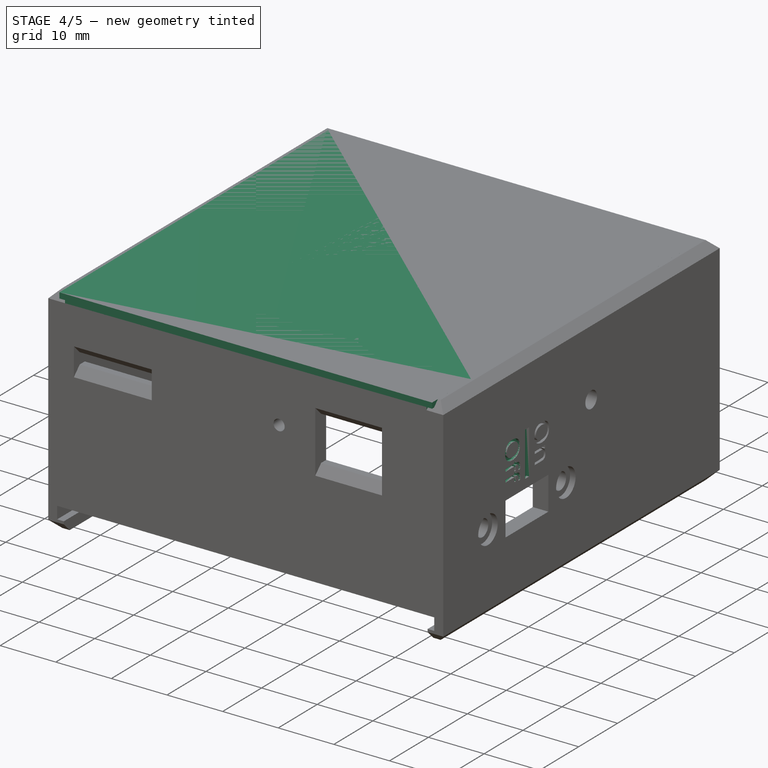
[diagram: stage 4 of 5 — iso view after this stage's code; geometry added in this stage tinted green]
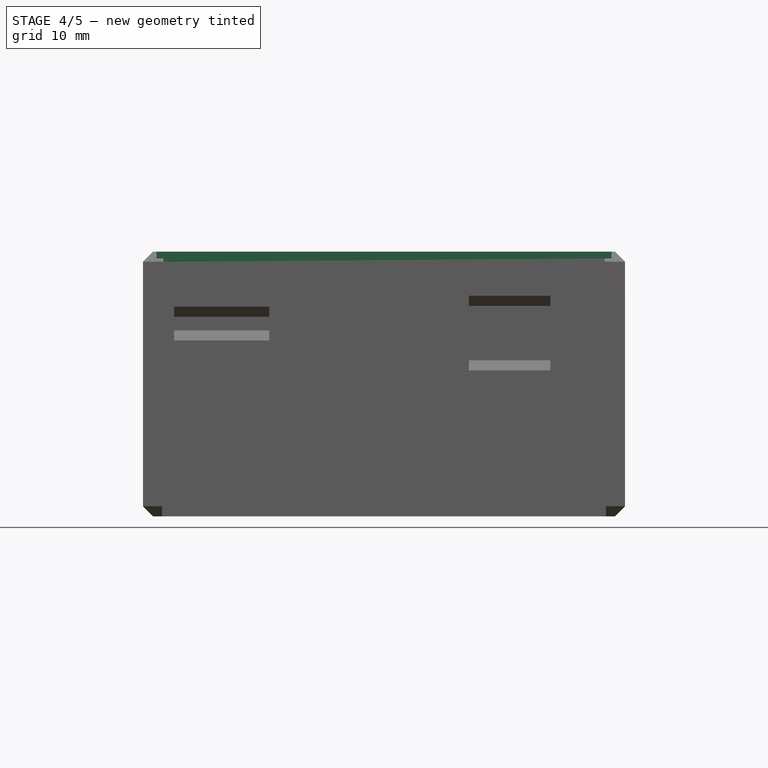
[diagram: stage 4 of 5 — front view after this stage's code; geometry added in this stage tinted green]
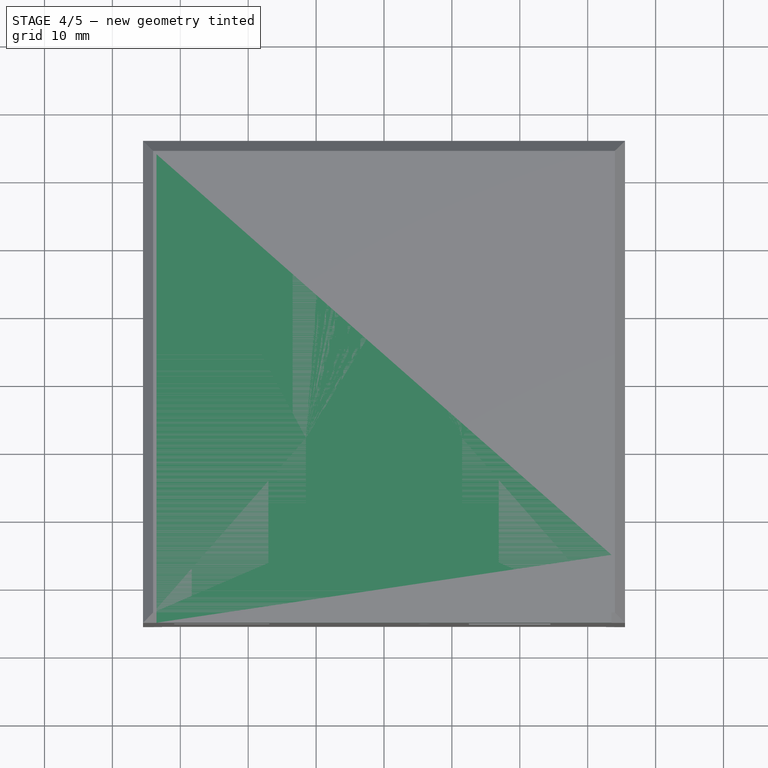
[diagram: stage 4 of 5 — top view after this stage's code; geometry added in this stage tinted green]
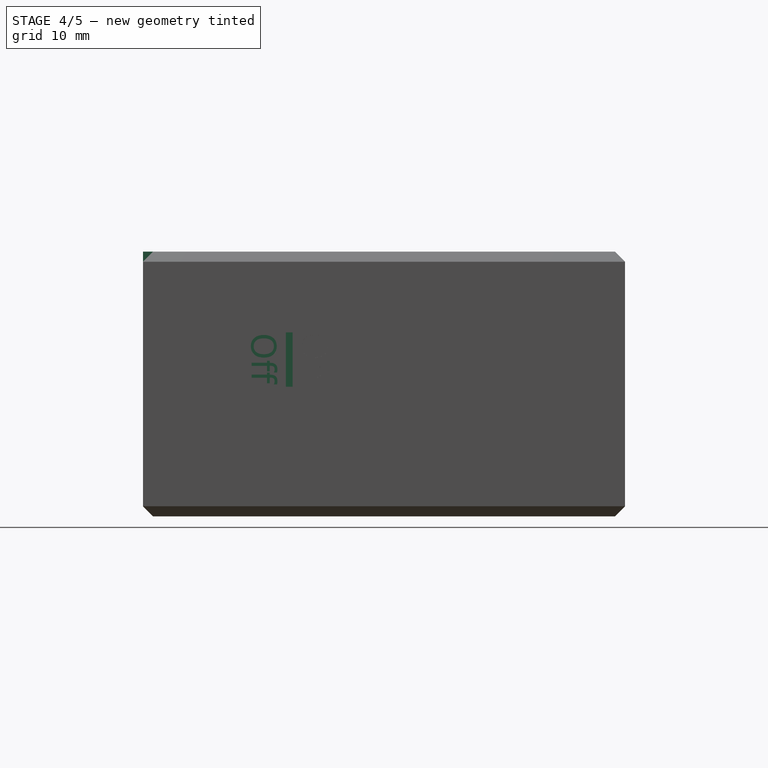
[diagram: stage 4 of 5 — right view after this stage's code; geometry added in this stage tinted green]
FEATURE [Sketcher::SketchObject] Sketch007
  MapMode = 5
  Support = -> [XY_Plane088]
  sketch-geometry (4):
    g0: LineSegment StartX=-35.5 StartY=35.5 StartZ=0 EndX=35.5 EndY=35.5 EndZ=0
    g1: LineSegment StartX=35.5 StartY=35.5 StartZ=0 EndX=35.5 EndY=-35.5 EndZ=0
    g2: LineSegment StartX=35.5 StartY=-35.5 StartZ=0 EndX=-35.5 EndY=-35.5 EndZ=0
    g3: LineSegment StartX=-35.5 StartY=-35.5 StartZ=0 EndX=-35.5 EndY=35.5 EndZ=0
  constraints (12):
    c: Coincident(g0,g1)
    c: Coincident(g1,g2)
    c: Coincident(g2,g3)
    c: Coincident(g3,g0)
    c: Horizontal(g0)
    c: Horizontal(g2)
    c: Vertical(g1)
    c: Vertical(g3)
    c: Distance(g0) = 71
    c: Distance(g1) = 71
    c: Distance(g0,g-2) = 35.5
    c: Distance(g0,g-1) = 35.5
FEATURE [PartDesign::Pad] Pad003
  Length = 3
  Length2 = 100
  Profile = -> Sketch007
  Type = 0
FEATURE [PartDesign::Pocket] Pocket011
  BaseFeature = -> Pad003
  Length = 3
  Length2 = 100
  Profile = -> Pad003 [Face4]
  Type = 0
FEATURE [PartDesign::Pocket] Pocket012
  BaseFeature = -> Pocket011
  Length = 3
  Length2 = 100
  Profile = -> Pocket011 [Face3]
  Type = 0
FEATURE [PartDesign::Pocket] Pocket013
  BaseFeature = -> Pocket012
  Length = 3
  Length2 = 100
  Profile = -> Pocket012 [Face1]
  Type = 0
FEATURE [Sketcher::SketchObject] Sketch011
  ExternalGeometry = -> [Pocket013]
  MapMode = 5
  Placement = pos=(32.5,0,0) rot=(0.57735,0.57735,0.57735;2.0944rad)
  Support = -> [Pocket013]
  sketch-geometry (4):
    g0: LineSegment StartX=-35.5 StartY=3 StartZ=0 EndX=32.5 EndY=3 EndZ=0
    g1: LineSegment StartX=32.5 StartY=3 StartZ=0 EndX=32.5 EndY=2 EndZ=0
    g2: LineSegment StartX=32.5 StartY=2 StartZ=0 EndX=-35.5 EndY=2 EndZ=0
    g3: LineSegment StartX=-35.5 StartY=2 StartZ=0 EndX=-35.5 EndY=3 EndZ=0
  constraints (11):
    c: Coincident(g0,g1)
    c: Coincident(g1,g2)
    c: Coincident(g2,g3)
    c: Coincident(g3,g0)
    c: Horizontal(g0)
    c: Horizontal(g2)
    c: Vertical(g1)
    c: Vertical(g3)
    c: Coincident(g0,g-4)
    c: Distance(g1) = 1
    c: Distance(g2) = 68
FEATURE [PartDesign::Pad] Pad005
  BaseFeature = -> Pocket013
  Length = 1
  Length2 = 100
  Profile = -> Sketch011
  Type = 0
FEATURE [Sketcher::SketchObject] Sketch012
  ExternalGeometry = -> [Pad005]
  MapMode = 5
  Placement = pos=(-32.5,0,0) rot=(0.57735,-0.57735,-0.57735;2.0944rad)
  Support = -> [Pad005]
  sketch-geometry (4):
    g0: LineSegment StartX=-32.5 StartY=3 StartZ=0 EndX=35.5 EndY=3 EndZ=0
    g1: LineSegment StartX=35.5 StartY=3 StartZ=0 EndX=35.5 EndY=2 EndZ=0
    g2: LineSegment StartX=35.5 StartY=2 StartZ=0 EndX=-32.5 EndY=2 EndZ=0
    g3: LineSegment StartX=-32.5 StartY=2 StartZ=0 EndX=-32.5 EndY=3 EndZ=0
  constraints (11):
    c: Coincident(g0,g1)
    c: Coincident(g1,g2)
    c: Coincident(g2,g3)
    c: Coincident(g3,g0)
    c: Horizontal(g0)
    c: Horizontal(g2)
    c: Vertical(g1)
    c: Vertical(g3)
    c: Distance(g0) = 68
    c: Distance(g3) = 1
    c: Coincident(g0,g-3)
FEATURE [PartDesign::Pad] Pad006
  BaseFeature = -> Pad005
  Length = 1
  Length2 = 100
  Profile = -> Sketch012
  Refine = true
  Type = 0
FEATURE [Sketcher::SketchObject] Sketch013
  ExternalGeometry = -> [Pad006]
  MapMode = 5
  Placement = pos=(0,32.5,0) rot=(0,0.707107,0.707107;3.14159rad)
  Support = -> [Pad006]
  sketch-geometry (4):
    g0: LineSegment StartX=-33.5 StartY=3 StartZ=0 EndX=33.5 EndY=3 EndZ=0
    g1: LineSegment StartX=33.5 StartY=3 StartZ=0 EndX=33.5 EndY=2 EndZ=0
    g2: LineSegment StartX=33.5 StartY=2 StartZ=0 EndX=-33.5 EndY=2 EndZ=0
    g3: LineSegment StartX=-33.5 StartY=2 StartZ=0 EndX=-33.5 EndY=3 EndZ=0
  constraints (11):
    c: Coincident(g0,g1)
    c: Coincident(g1,g2)
    c: Coincident(g2,g3)
    c: Coincident(g3,g0)
    c: Horizontal(g0)
    c: Horizontal(g2)
    c: Vertical(g1)
    c: Vertical(g3)
    c: Coincident(g0,g-3)
    c: Distance(g1) = 1
    c: Distance(g2) = 67
FEATURE [PartDesign::Pad] Pad007
  BaseFeature = -> Pad006
  Length = 1
  Length2 = 100
  Profile = -> Sketch013
  Refine = true
  Type = 0
FEATURE [PartDesign::Chamfer] Chamfer006
  Base = -> Pad007 [Edge4]
  BaseFeature = -> Pad007
  Size = 1.5
FEATURE [Sketcher::SketchObject] Sketch014
  MapMode = 5
  Placement = pos=(0,0,0) rot=(1,0,0;3.14159rad)
  Support = -> [Chamfer006]
  sketch-geometry (2):
    g0: LineSegment StartX=-5 StartY=22 StartZ=0 EndX=5 EndY=22 EndZ=0
    g1: ArcOfCircle CenterX=-1e-16 CenterY=22 CenterZ=0 NormalX=0 NormalY=0 NormalZ=1 AngleXU=0 Radius=5 StartAngle=3.14159 EndAngle=6.28319
  constraints (8):
    c: Horizontal(g0)
    c: Distance(g0) = 10
    c: Distance(g0,g-2) = 5
    c: Distance(g1,g-1) = 22
    c: Distance(g1,g1) = 10
    c: Coincident(g1,g0)
    c: Distance(g1,g-1) = 22
    c: Distance(g0,g-1) = 22
FEATURE [PartDesign::Pocket] Pocket014
  BaseFeature = -> Chamfer006
  Length = 1
  Length2 = 100
  Profile = -> Sketch014
  Type = 0
FEATURE [PartDesign::Chamfer] Chamfer007
  Base = -> Pocket014 [Edge5]
  BaseFeature = -> Pocket014
  Size = 0.9
FEATURE [Sketcher::SketchObject] Sketch016
  ExternalGeometry = -> [Chamfer007]
  MapMode = 5
  Placement = pos=(33.5,0,0) rot=(0.57735,0.57735,0.57735;2.0944rad)
  Support = -> [Chamfer007]
  sketch-geometry (4):
    g0: LineSegment StartX=-30.5 StartY=3 StartZ=0 EndX=-25.5 EndY=3 EndZ=0
    g1: LineSegment StartX=-25.5 StartY=3 StartZ=0 EndX=-25.5 EndY=2 EndZ=0
    g2: LineSegment StartX=-25.5 StartY=2 StartZ=0 EndX=-30.5 EndY=2 EndZ=0
    g3: LineSegment StartX=-30.5 StartY=2 StartZ=0 EndX=-30.5 EndY=3 EndZ=0
  constraints (12):
    c: Coincident(g0,g1)
    c: Coincident(g1,g2)
    c: Coincident(g2,g3)
    c: Coincident(g3,g0)
    c: Horizontal(g0)
    c: Horizontal(g2)
    c: Vertical(g1)
    c: Vertical(g3)
    c: Distance(g3) = 1
    c: Distance(g0) = 5
    c: Distance(g0,g-4) = 1
    c: Distance(g2,g-3) = 5
FEATURE [PartDesign::Pad] Pad008
  BaseFeature = -> Chamfer007
  Length = 0.5
  Length2 = 100
  Profile = -> Sketch016
  Type = 0
FEATURE [PartDesign::Pocket] Pocket034
  BaseFeature = -> Pocket033
  Length = 0.5
  Length2 = 100
  Profile = -> ShapeString001
  Type = 0
FEATURE [PartDesign::Pocket] Pocket035
  BaseFeature = -> Pocket034
  Length = 0.5
  Length2 = 100
  Profile = -> Sketch032
  Type = 0
FEATURE [Sketcher::SketchObject] Sketch033
  MapMode = 5
  Placement = pos=(0,35.5,0) rot=(0,0.707107,0.707107;3.14159rad)
  Support = -> [Pocket035]
  sketch-geometry (4):
    g0: LineSegment StartX=11.5452 StartY=-6.38205 StartZ=0 EndX=17.7212 EndY=-6.38205 EndZ=0
    g1: LineSegment StartX=17.7212 StartY=-6.38205 StartZ=0 EndX=17.7212 EndY=-14.0655 EndZ=0
    g2: LineSegment StartX=17.7212 StartY=-14.0655 StartZ=0 EndX=11.5452 EndY=-14.0655 EndZ=0
    g3: LineSegment StartX=11.5452 StartY=-14.0655 StartZ=0 EndX=11.5452 EndY=-6.38205 EndZ=0
  constraints (8):
    c: Coincident(g0,g1)
    c: Coincident(g1,g2)
    c: Coincident(g2,g3)
    c: Coincident(g3,g0)
    c: Horizontal(g0)
    c: Horizontal(g2)
    c: Vertical(g1)
    c: Vertical(g3)
FEATURE [PartDesign::Pad] Pad017
  BaseFeature = -> Pocket035
  Length = 2.8
  Length2 = 100
  Profile = -> Sketch033
  Refine = true
  Reversed = true
  Type = 0
FEATURE [PartDesign::Body] Body  label="Front"
  Group = -> [Sketch,Pad,Sketch001,Pocket,Sketch002,Pocket001,Sketch003,Pad001,Pocket002,Pocket003,Pocket004,Pocket005,Sketch004,Pad002,Fillet,Sketch005,Pocket006,Sketch006,Pocket007,Chamfer,Chamfer001,Chamfer002,Pad004,Sketch008,Pocket008,Sketch009,Pocket009,Sketch010,Pocket010,Chamfer003,Chamfer004,Chamfer005,Sketch015,Pocket015,Sketch018,Pocket016,Fillet003,Sketch019,Pocket017,Fillet004,Sketch020,Pocket018,+32 more]
  Origin = -> Origin
  Placement = pos=(0,0,6.77) rot=(0,0,1;0rad)
  Tip = -> Pad017
note: 2 file-system paths scrubbed to <path> (originals preserved in the JSON sidecar)
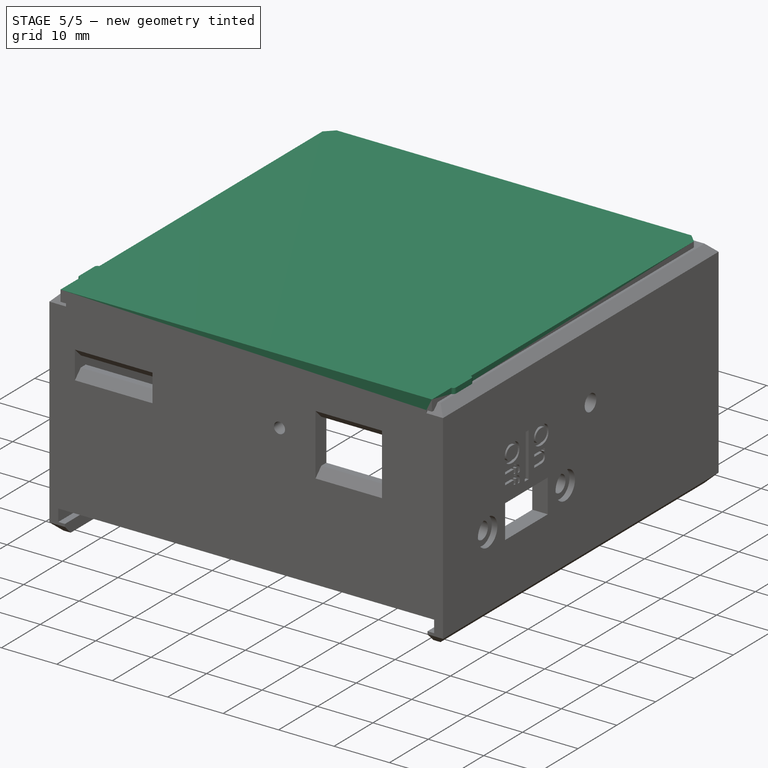
[diagram: stage 5 of 5 — iso view after this stage's code; geometry added in this stage tinted green]
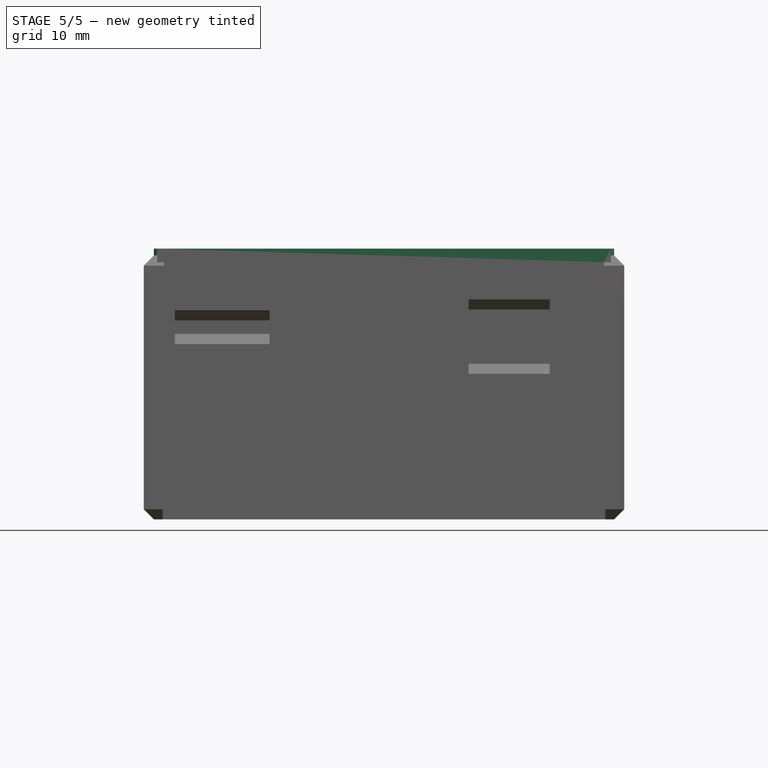
[diagram: stage 5 of 5 — front view after this stage's code; geometry added in this stage tinted green]
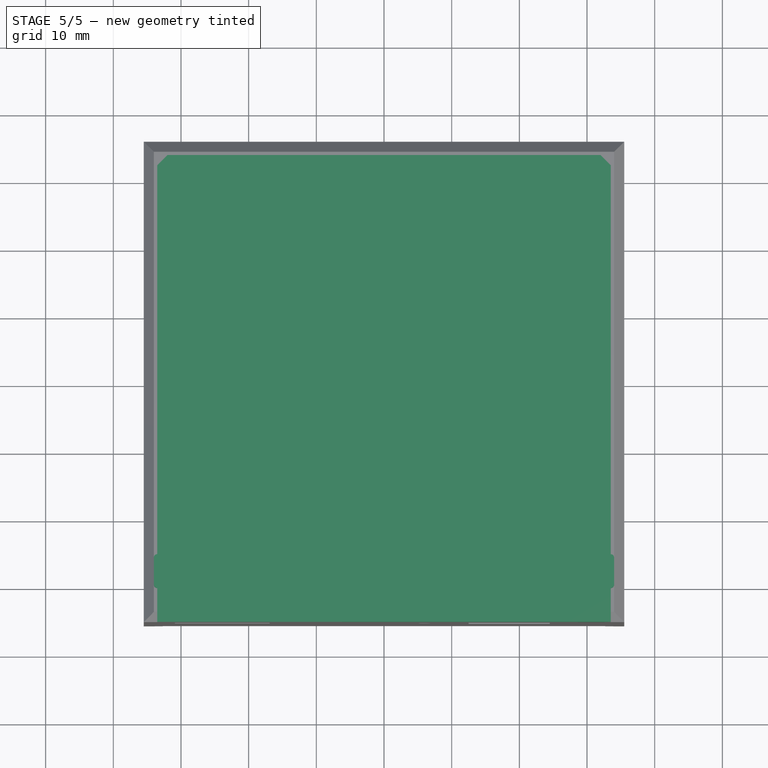
[diagram: stage 5 of 5 — top view after this stage's code; geometry added in this stage tinted green]
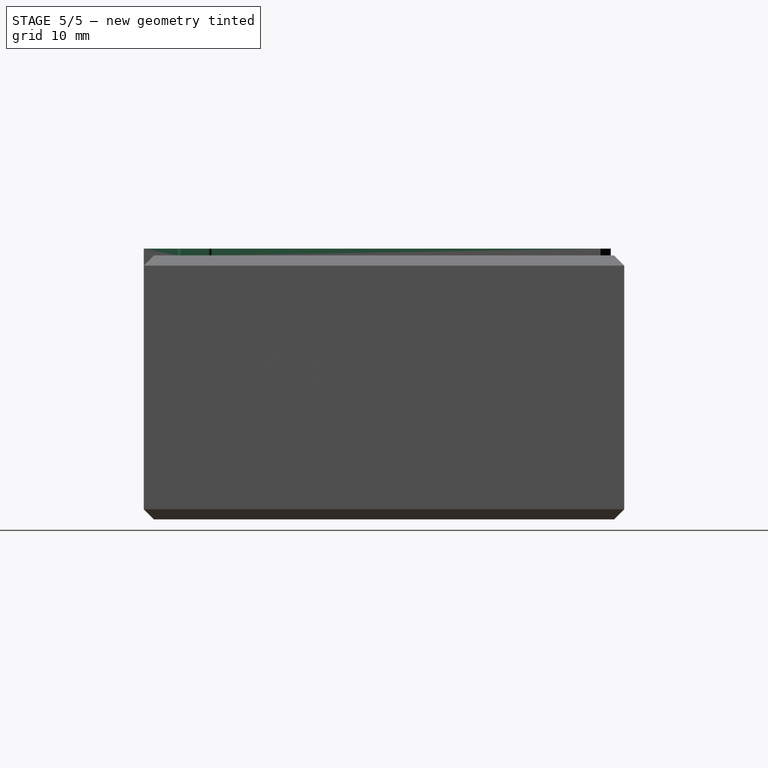
[diagram: stage 5 of 5 — right view after this stage's code; geometry added in this stage tinted green]
FEATURE [PartDesign::Fillet] Fillet001
  Base = -> Pad008 [Edge49,Edge52]
  BaseFeature = -> Pad008
  Radius = 0.49
FEATURE [Sketcher::SketchObject] Sketch017
  ExternalGeometry = -> [Fillet001]
  MapMode = 5
  Placement = pos=(-33.5,0,-3.4e-15) rot=(0.57735,-0.57735,-0.57735;2.0944rad)
  Support = -> [Fillet001]
  sketch-geometry (4):
    g0: LineSegment StartX=25.5 StartY=3 StartZ=0 EndX=30.5 EndY=3 EndZ=0
    g1: LineSegment StartX=30.5 StartY=3 StartZ=0 EndX=30.5 EndY=2 EndZ=0
    g2: LineSegment StartX=30.5 StartY=2 StartZ=0 EndX=25.5 EndY=2 EndZ=0
    g3: LineSegment StartX=25.5 StartY=2 StartZ=0 EndX=25.5 EndY=3 EndZ=0
  constraints (13):
    c: Coincident(g0,g1)
    c: Coincident(g1,g2)
    c: Coincident(g2,g3)
    c: Coincident(g3,g0)
    c: Horizontal(g0)
    c: Horizontal(g2)
    c: Vertical(g1)
    c: Vertical(g3)
    c: Distance(g1) = 1
    c: Distance(g0) = 5
    c: Distance(g-4) = 1
    c: Distance(g0,g-4) = 5
    c: Distance(g1,g-3) = 1
FEATURE [PartDesign::Pad] Pad009
  BaseFeature = -> Fillet001
  Length = 0.5
  Length2 = 100
  Profile = -> Sketch017
  Type = 0
FEATURE [PartDesign::Fillet] Fillet002
  Base = -> Pad009 [Edge64,Edge62]
  BaseFeature = -> Pad009
  Radius = 0.49
FEATURE [PartDesign::Chamfer] Chamfer008
  Base = -> Fillet002 [Edge47,Edge44]
  BaseFeature = -> Fillet002
  Size = 1.5
FEATURE [PartDesign::Chamfer] Chamfer009
  Base = -> Chamfer008 [Edge48,Edge41]
  BaseFeature = -> Chamfer008
  Size = 1.5
FEATURE [PartDesign::Pad] Pad010
  BaseFeature = -> Chamfer009
  Length = 1
  Length2 = 100
  Profile = -> Chamfer009 [Face19]
  Refine = true
  Type = 0
FEATURE [PartDesign::Pad] Pad011
  BaseFeature = -> Pad010
  Length = 1
  Length2 = 100
  Profile = -> Pad010 [Face17]
  Type = 0
FEATURE [PartDesign::Pad] Pad012
  BaseFeature = -> Pad011
  Length = 1
  Length2 = 100
  Profile = -> Pad011 [Face31]
  Type = 0
FEATURE [PartDesign::Pocket] Pocket022
  BaseFeature = -> Pad012
  Length = 0.5
  Length2 = 100
  Profile = -> Pad012 [Face25]
  Type = 0
FEATURE [PartDesign::Pocket] Pocket023
  BaseFeature = -> Pocket022
  Length = 5
  Length2 = 100
  Profile = -> Pocket022 [Face17]
  Type = 0
FEATURE [PartDesign::Pocket] Pocket024
  BaseFeature = -> Pocket023
  Length = 5
  Length2 = 100
  Profile = -> Pocket023 [Face15]
  Type = 0
FEATURE [PartDesign::Pocket] Pocket025
  BaseFeature = -> Pocket024
  Length = 0.5
  Length2 = 100
  Profile = -> Pocket024 [Face25]
  Type = 0
FEATURE [PartDesign::Pocket] Pocket026
  BaseFeature = -> Pocket025
  Length = 5
  Length2 = 100
  Profile = -> Pocket025 [Face25]
  Type = 0
FEATURE [PartDesign::Pocket] Pocket027
  BaseFeature = -> Pocket026
  Length = 5
  Length2 = 100
  Profile = -> Pocket026 [Face26]
  Refine = true
  Type = 0
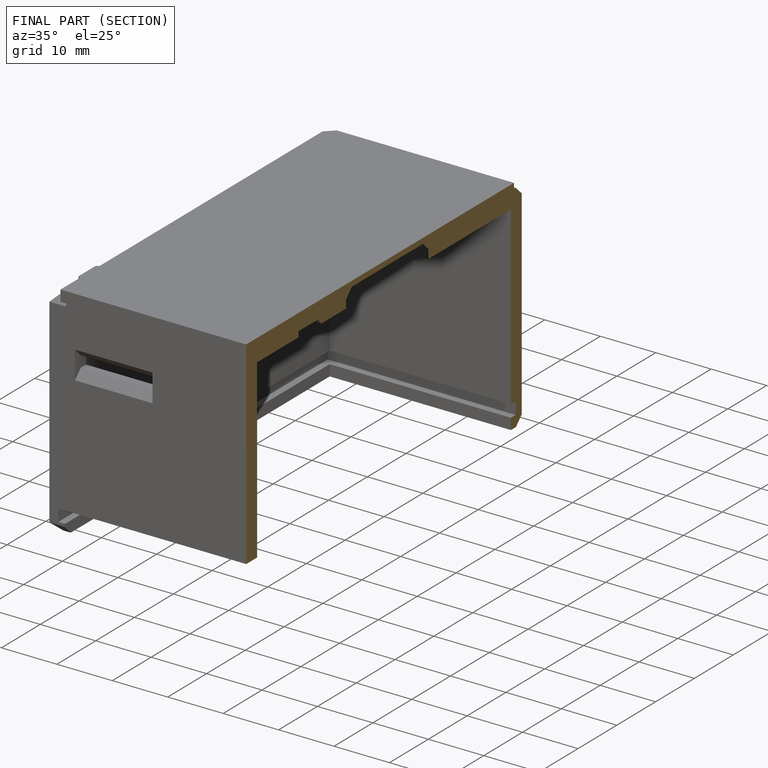
[diagram: finished part — half-section view (interior)]
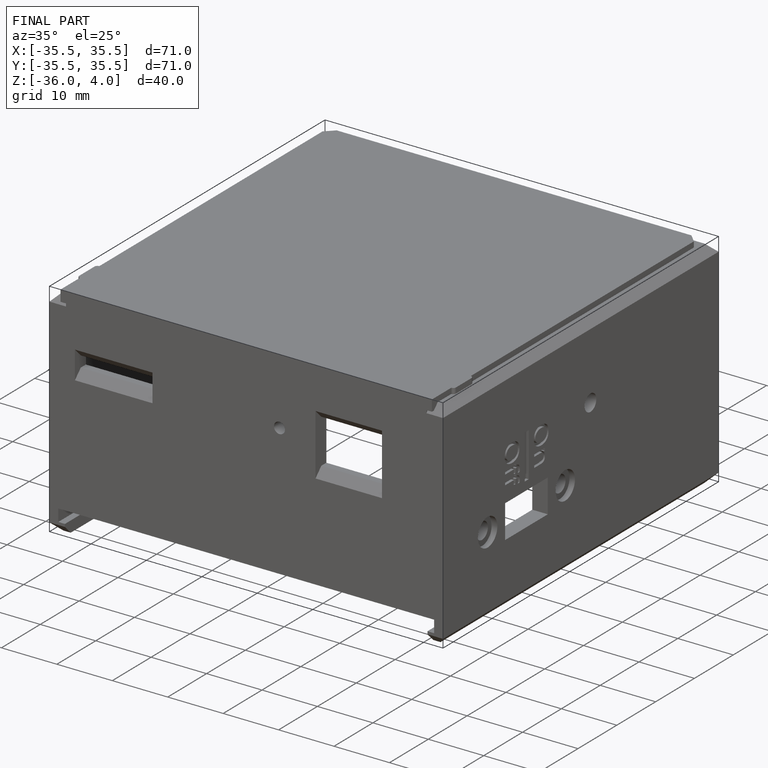
[diagram: finished part — iso view with bounding-box wireframe]
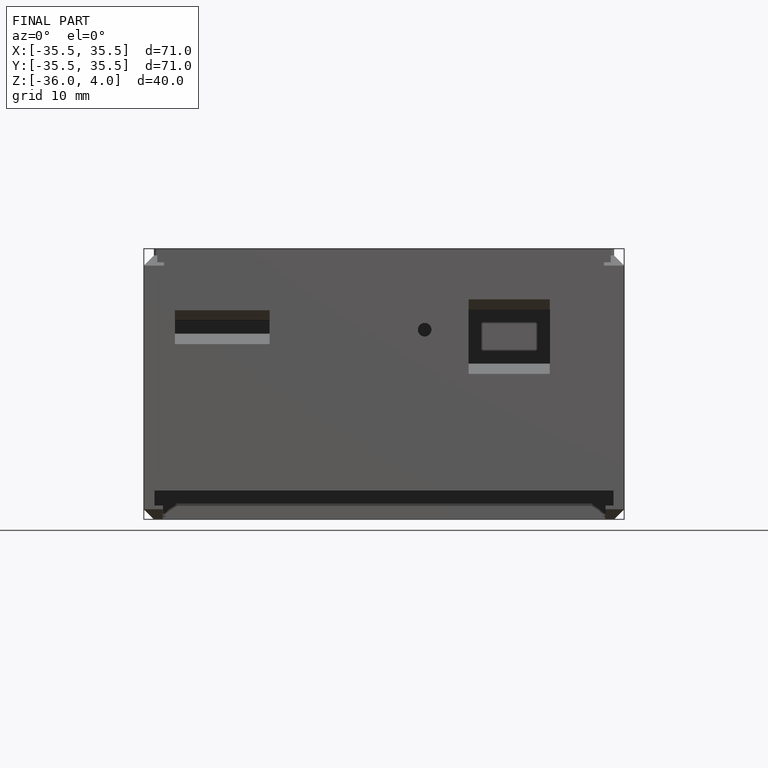
[diagram: finished part — front view with bounding-box wireframe]
